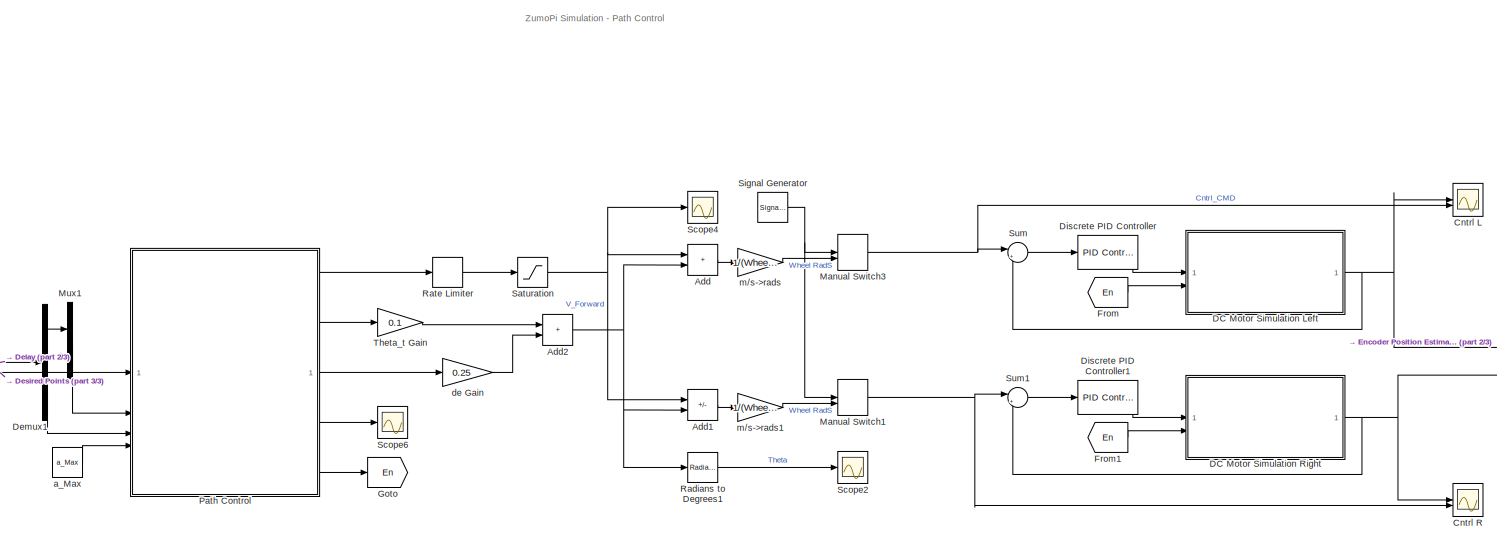
[diagram: root canvas - part 1/3, center side, full height]
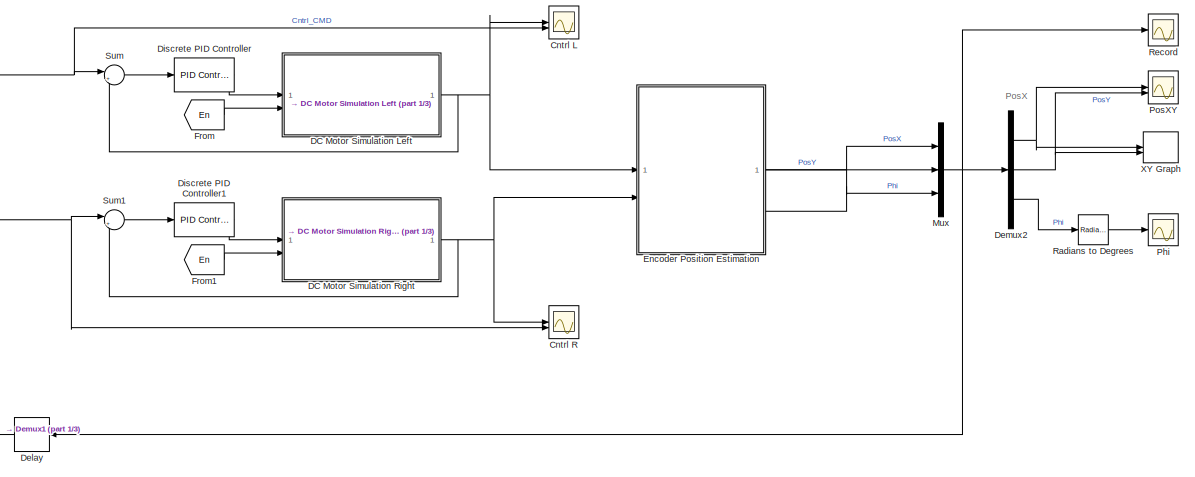
[diagram: root canvas - part 2/3, middle right region]
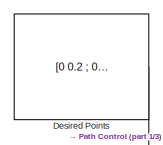
[diagram: root canvas - part 3/3, middle left region]
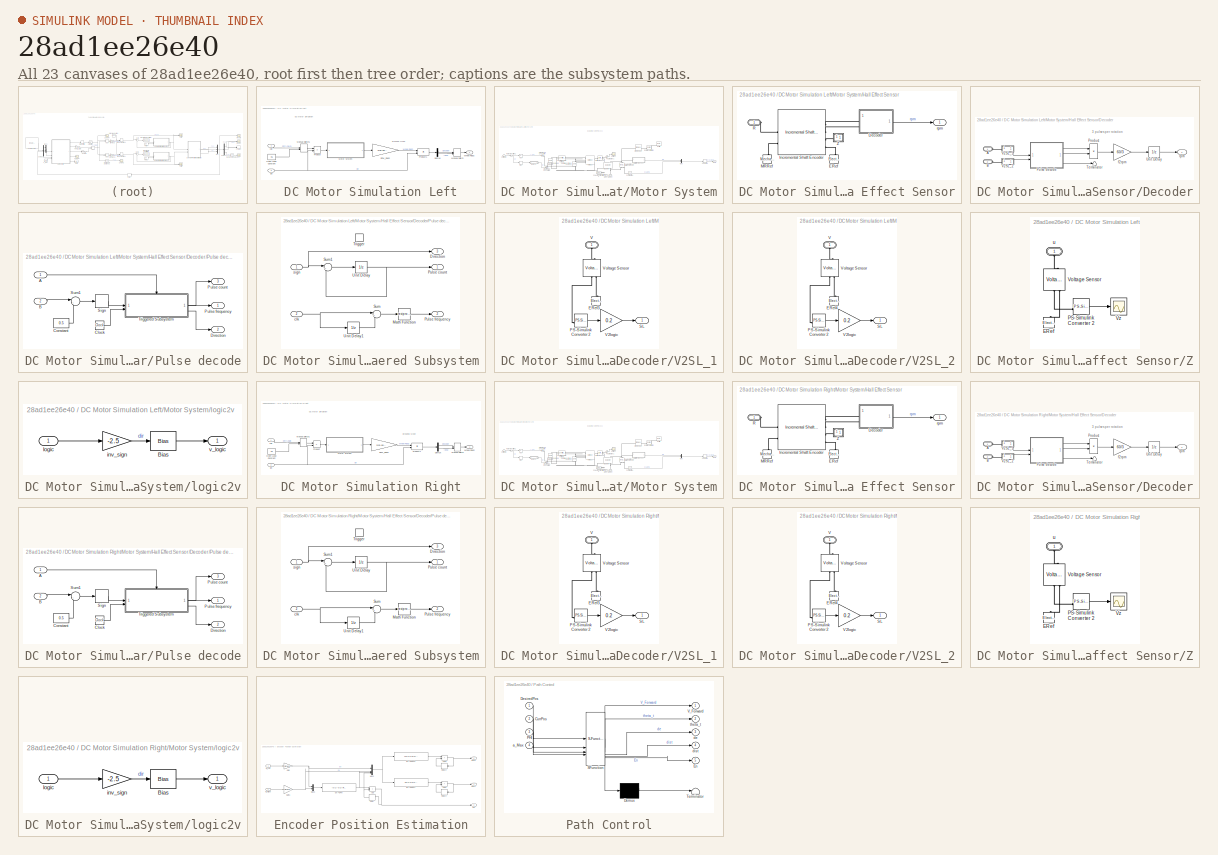
[diagram: thumbnail index - all 23 canvases of the model, root first then tree order]
MODEL slx_28ad1ee26e40
KIND model
CONFIG AbsTol = auto
CONFIG EnableMultiTasking = off
CONFIG FixedStep = auto
CONFIG InitFcn = InitZumo
CONFIG MaxStep = auto
CONFIG MinStep = auto
CONFIG PreLoadFcn = InitZumo
CONFIG RelTol = 1e-3
CONFIG SampleTimeConstraint = Unconstrained
CONFIG SolverName = ode15s
CONFIG StartTime = 0.0
CONFIG StopTime = 60
BLOCK [Sum] Add
  IconShape = rectangular
BLOCK [Sum] Add1
  IconShape = rectangular
  Inputs = +-
BLOCK [Sum] Add2
  IconShape = rectangular
BLOCK [Scope] Cntrl L
  Floating = off
  NumInputPorts = 2
  ScopeSpecificationString = Simulink.scopes.TimeScopeBlockCfg('CurrentConfiguration', extmgr.ConfigurationSet(extmgr.Configuration('Core','General UI',true),extmgr.Configuration('Core','Source UI',true),extmgr.Configuration('Sources','WiredSimulink',true,'DataLoggingVariableName','ScopeData1','DataLoggingSaveFormat','StructureWithTime','DataLoggingDecimation','1','DataLoggingDecimateData',true),extmgr.Configuration('Visuals'...<+1773ch>
BLOCK [Scope] Cntrl R
  Floating = off
  NumInputPorts = 2
  ScopeSpecificationString = Simulink.scopes.TimeScopeBlockCfg('CurrentConfiguration', extmgr.ConfigurationSet(extmgr.Configuration('Core','General UI',true),extmgr.Configuration('Core','Source UI',true),extmgr.Configuration('Sources','WiredSimulink',true,'DataLoggingVariableName','ScopeData2','DataLoggingSaveFormat','StructureWithTime','DataLoggingDecimation','1','DataLoggingDecimateData',true),extmgr.Configuration('Visuals'...<+1765ch>
BLOCK [SubSystem] DC Motor Simulation Left
BLOCK [Demux] DC Motor Simulation Left/Demux
  Outputs = 2
BLOCK [Inport] DC Motor Simulation Left/En
  Port = 2
BLOCK [ManualSwitch] DC Motor Simulation Left/Manual Switch
BLOCK [ManualSwitch] DC Motor Simulation Left/Manual Switch1
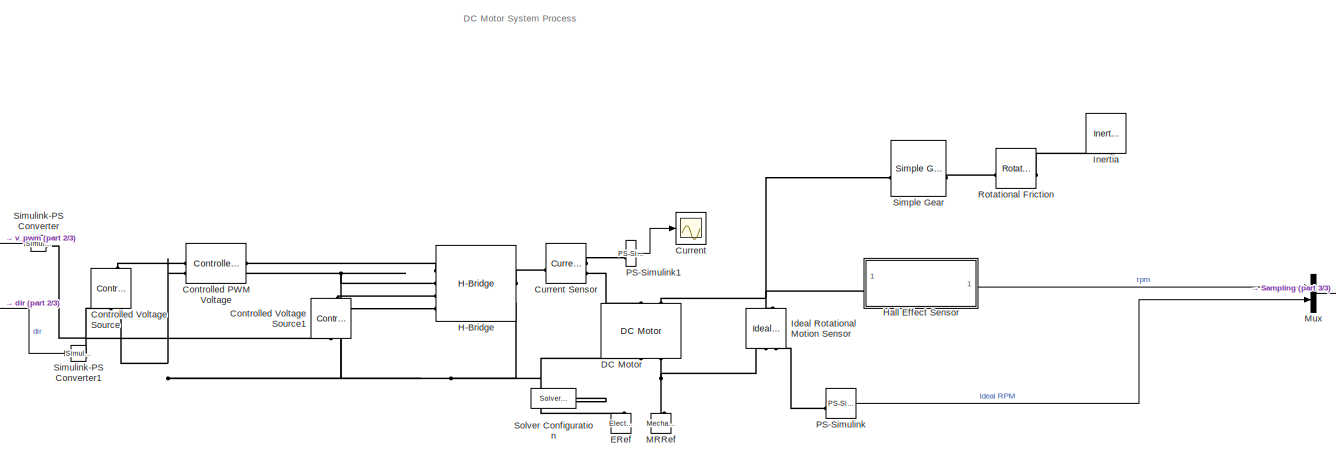
[diagram: DC Motor Simulation Left/Motor System - part 1/3, center side, full height]
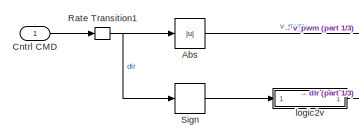
[diagram: DC Motor Simulation Left/Motor System - part 2/3, middle left region]
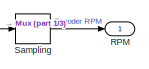
[diagram: DC Motor Simulation Left/Motor System - part 3/3, middle right region]
BLOCK [SubSystem] DC Motor Simulation Left/Motor System
BLOCK [Abs] DC Motor Simulation Left/Motor System/Abs
  SaturateOnIntegerOverflow = off
BLOCK [Inport] DC Motor Simulation Left/Motor System/Cntrl CMD
BLOCK [Reference] DC Motor Simulation Left/Motor System/Controlled PWM Voltage  REF=ee_lib/Integrated Circuits/Controlled PWM
Voltage
  SourceBlock = ee_lib/Integrated Circuits/Controlled PWM\nVoltage
  SourceType = Controlled PWM\nVoltage
BLOCK [Reference] DC Motor Simulation Left/Motor System/Controlled Voltage Source  REF=fl_lib/Electrical/Electrical Sources/Controlled Voltage
Source
  SourceBlock = fl_lib/Electrical/Electrical Sources/Controlled Voltage\nSource
  SourceType = Controlled Voltage\nSource
BLOCK [Reference] DC Motor Simulation Left/Motor System/Controlled Voltage Source1  REF=fl_lib/Electrical/Electrical Sources/Controlled Voltage
Source
  NameLocation = right
  SourceBlock = fl_lib/Electrical/Electrical Sources/Controlled Voltage\nSource
  SourceType = Controlled Voltage\nSource
BLOCK [Scope] DC Motor Simulation Left/Motor System/Current
  Floating = off
  NumInputPorts = 1
  ScopeSpecificationString = Simulink.scopes.TimeScopeBlockCfg('CurrentConfiguration', extmgr.ConfigurationSet(extmgr.Configuration('Core','General UI',true),extmgr.Configuration('Core','Source UI',true),extmgr.Configuration('Sources','WiredSimulink',true,'DataLoggingVariableName','RPM','DataLoggingSaveFormat','StructureWithTime','DataLoggingDecimation','1','DataLoggingDecimateData',true),extmgr.Configuration('Visuals','Time ...<+1669ch>
BLOCK [Reference] DC Motor Simulation Left/Motor System/Current Sensor  REF=fl_lib/Electrical/Electrical Sensors/Current Sensor
  NameLocation = top
  SourceBlock = fl_lib/Electrical/Electrical Sensors/Current Sensor
  SourceType = Current Sensor
BLOCK [Reference] DC Motor Simulation Left/Motor System/DC Motor  REF=ee_lib/Electromechanical/Brushed Motors/DC Motor
  NameLocation = left
  SourceBlock = ee_lib/Electromechanical/Brushed Motors/DC Motor
  SourceType = DC Motor
BLOCK [Reference] DC Motor Simulation Left/Motor System/ERef  REF=fl_lib/Electrical/Electrical Elements/Electrical Reference
  NameLocation = left
  SourceBlock = fl_lib/Electrical/Electrical Elements/Electrical Reference
  SourceType = Electrical Reference
BLOCK [Reference] DC Motor Simulation Left/Motor System/H-Bridge  REF=ee_lib/Semiconductors &
Converters/Converters/H-Bridge
  SourceBlock = ee_lib/Semiconductors &\nConverters/Converters/H-Bridge
  SourceType = H-Bridge
BLOCK [SubSystem] DC Motor Simulation Left/Motor System/Hall Effect Sensor
  NameLocation = top
BLOCK [SubSystem] DC Motor Simulation Left/Motor System/Hall Effect Sensor/Decoder
BLOCK [PMIOPort] DC Motor Simulation Left/Motor System/Hall Effect Sensor/Decoder/A
  Side = Left
BLOCK [PMIOPort] DC Motor Simulation Left/Motor System/Hall Effect Sensor/Decoder/B
  Port = 2
  Side = Left
BLOCK [Product] DC Motor Simulation Left/Motor System/Hall Effect Sensor/Decoder/Product
  RndMeth = Zero
BLOCK [SubSystem] DC Motor Simulation Left/Motor System/Hall Effect Sensor/Decoder/Pulse decode
BLOCK [Inport] DC Motor Simulation Left/Motor System/Hall Effect Sensor/Decoder/Pulse decode/A
BLOCK [Inport] DC Motor Simulation Left/Motor System/Hall Effect Sensor/Decoder/Pulse decode/B
  Port = 2
BLOCK [Clock] DC Motor Simulation Left/Motor System/Hall Effect Sensor/Decoder/Pulse decode/Clock
BLOCK [Constant] DC Motor Simulation Left/Motor System/Hall Effect Sensor/Decoder/Pulse decode/Constant
  Value = 0.5
BLOCK [Outport] DC Motor Simulation Left/Motor System/Hall Effect Sensor/Decoder/Pulse decode/Direction
  Port = 2
  VectorParamsAs1DForOutWhenUnconnected = off
BLOCK [Outport] DC Motor Simulation Left/Motor System/Hall Effect Sensor/Decoder/Pulse decode/Pulse count
  Port = 3
  VectorParamsAs1DForOutWhenUnconnected = off
BLOCK [Outport] DC Motor Simulation Left/Motor System/Hall Effect Sensor/Decoder/Pulse decode/Pulse frequency
  VectorParamsAs1DForOutWhenUnconnected = off
BLOCK [Signum] DC Motor Simulation Left/Motor System/Hall Effect Sensor/Decoder/Pulse decode/Sign
BLOCK [Sum] DC Motor Simulation Left/Motor System/Hall Effect Sensor/Decoder/Pulse decode/Sum1
  Inputs = |-+
BLOCK [SubSystem] DC Motor Simulation Left/Motor System/Hall Effect Sensor/Decoder/Pulse decode/Triggered Subsystem
  TreatAsAtomicUnit = on
BLOCK [Outport] DC Motor Simulation Left/Motor System/Hall Effect Sensor/Decoder/Pulse decode/Triggered Subsystem/Direction
  InitialOutput = 0
  Port = 3
  VectorParamsAs1DForOutWhenUnconnected = off
BLOCK [Math] DC Motor Simulation Left/Motor System/Hall Effect Sensor/Decoder/Pulse decode/Triggered Subsystem/Math Function
  Operator = reciprocal
  SignedPower = on
BLOCK [Outport] DC Motor Simulation Left/Motor System/Hall Effect Sensor/Decoder/Pulse decode/Triggered Subsystem/Pulse count
  InitialOutput = 0
  VectorParamsAs1DForOutWhenUnconnected = off
BLOCK [Outport] DC Motor Simulation Left/Motor System/Hall Effect Sensor/Decoder/Pulse decode/Triggered Subsystem/Pulse frequency
  Port = 2
  VectorParamsAs1DForOutWhenUnconnected = off
BLOCK [Sum] DC Motor Simulation Left/Motor System/Hall Effect Sensor/Decoder/Pulse decode/Triggered Subsystem/Sum
  Inputs = |+-
BLOCK [Sum] DC Motor Simulation Left/Motor System/Hall Effect Sensor/Decoder/Pulse decode/Triggered Subsystem/Sum1
  Inputs = |++
BLOCK [TriggerPort] DC Motor Simulation Left/Motor System/Hall Effect Sensor/Decoder/Pulse decode/Triggered Subsystem/Trigger
  StatesWhenEnabling = held
  VariantControl = Variant
BLOCK [UnitDelay] DC Motor Simulation Left/Motor System/Hall Effect Sensor/Decoder/Pulse decode/Triggered Subsystem/Unit Delay
  HasFrameUpgradeWarning = on
  SampleTime = -1
BLOCK [UnitDelay] DC Motor Simulation Left/Motor System/Hall Effect Sensor/Decoder/Pulse decode/Triggered Subsystem/Unit Delay1
  HasFrameUpgradeWarning = on
  InitialCondition = -1e10
  SampleTime = -1
BLOCK [Inport] DC Motor Simulation Left/Motor System/Hall Effect Sensor/Decoder/Pulse decode/Triggered Subsystem/clk
  Port = 2
BLOCK [Inport] DC Motor Simulation Left/Motor System/Hall Effect Sensor/Decoder/Pulse decode/Triggered Subsystem/sign
BLOCK [Terminator] DC Motor Simulation Left/Motor System/Hall Effect Sensor/Decoder/Terminator
BLOCK [UnitDelay] DC Motor Simulation Left/Motor System/Hall Effect Sensor/Decoder/Unit Delay
  HasFrameUpgradeWarning = on
  SampleTime = sampleTime
BLOCK [SubSystem] DC Motor Simulation Left/Motor System/Hall Effect Sensor/Decoder/V2SL_1
BLOCK [Reference] DC Motor Simulation Left/Motor System/Hall Effect Sensor/Decoder/V2SL_1/ERef3  REF=fl_lib/Electrical/Electrical Elements/Electrical Reference
  NameLocation = right
  SourceBlock = fl_lib/Electrical/Electrical Elements/Electrical Reference
  SourceType = Electrical Reference
BLOCK [Reference] DC Motor Simulation Left/Motor System/Hall Effect Sensor/Decoder/V2SL_1/PS-Simulink Converter 2  REF=nesl_utility/PS-Simulink
Converter
  SourceBlock = nesl_utility/PS-Simulink\nConverter
  SourceType = PS-Simulink\nConverter
BLOCK [Outport] DC Motor Simulation Left/Motor System/Hall Effect Sensor/Decoder/V2SL_1/SL
  VectorParamsAs1DForOutWhenUnconnected = off
BLOCK [PMIOPort] DC Motor Simulation Left/Motor System/Hall Effect Sensor/Decoder/V2SL_1/V
  NameLocation = right
  Side = Left
BLOCK [Gain] DC Motor Simulation Left/Motor System/Hall Effect Sensor/Decoder/V2SL_1/V2logic
  Gain = 0.2
BLOCK [Reference] DC Motor Simulation Left/Motor System/Hall Effect Sensor/Decoder/V2SL_1/Voltage Sensor  REF=fl_lib/Electrical/Electrical Sensors/Voltage Sensor
  NameLocation = right
  SourceBlock = fl_lib/Electrical/Electrical Sensors/Voltage Sensor
  SourceType = Voltage Sensor
BLOCK [SubSystem] DC Motor Simulation Left/Motor System/Hall Effect Sensor/Decoder/V2SL_2
BLOCK [Reference] DC Motor Simulation Left/Motor System/Hall Effect Sensor/Decoder/V2SL_2/ERef4  REF=fl_lib/Electrical/Electrical Elements/Electrical Reference
  NameLocation = right
  SourceBlock = fl_lib/Electrical/Electrical Elements/Electrical Reference
  SourceType = Electrical Reference
BLOCK [Reference] DC Motor Simulation Left/Motor System/Hall Effect Sensor/Decoder/V2SL_2/PS-Simulink Converter 2  REF=nesl_utility/PS-Simulink
Converter
  SourceBlock = nesl_utility/PS-Simulink\nConverter
  SourceType = PS-Simulink\nConverter
BLOCK [Outport] DC Motor Simulation Left/Motor System/Hall Effect Sensor/Decoder/V2SL_2/SL
  VectorParamsAs1DForOutWhenUnconnected = off
BLOCK [PMIOPort] DC Motor Simulation Left/Motor System/Hall Effect Sensor/Decoder/V2SL_2/V
  NameLocation = right
  Side = Left
BLOCK [Gain] DC Motor Simulation Left/Motor System/Hall Effect Sensor/Decoder/V2SL_2/V2logic
  Gain = 0.2
BLOCK [Reference] DC Motor Simulation Left/Motor System/Hall Effect Sensor/Decoder/V2SL_2/Voltage Sensor  REF=fl_lib/Electrical/Electrical Sensors/Voltage Sensor
  NameLocation = right
  SourceBlock = fl_lib/Electrical/Electrical Sensors/Voltage Sensor
  SourceType = Voltage Sensor
BLOCK [Gain] DC Motor Simulation Left/Motor System/Hall Effect Sensor/Decoder/f2rpm
  Gain = 60/3
BLOCK [Outport] DC Motor Simulation Left/Motor System/Hall Effect Sensor/Decoder/rpm
  VectorParamsAs1DForOutWhenUnconnected = off
BLOCK [Reference] DC Motor Simulation Left/Motor System/Hall Effect Sensor/ERef  REF=fl_lib/Electrical/Electrical Elements/Electrical Reference
  NameLocation = right
  SourceBlock = fl_lib/Electrical/Electrical Elements/Electrical Reference
  SourceType = Electrical Reference
BLOCK [Reference] DC Motor Simulation Left/Motor System/Hall Effect Sensor/Incremental Shaft Encoder  REF=ee_lib/Sensors &
Transducers/Incremental Shaft
Encoder
  SourceBlock = ee_lib/Sensors &\nTransducers/Incremental Shaft\nEncoder
  SourceType = Incremental Shaft\nEncoder
BLOCK [Reference] DC Motor Simulation Left/Motor System/Hall Effect Sensor/MRRef  REF=fl_lib/Mechanical/Rotational Elements/Mechanical
Rotational Reference
  NameLocation = left
  SourceBlock = fl_lib/Mechanical/Rotational Elements/Mechanical\nRotational Reference
  SourceType = Mechanical\nRotational Reference
BLOCK [PMIOPort] DC Motor Simulation Left/Motor System/Hall Effect Sensor/R
  Side = Left
BLOCK [SubSystem] DC Motor Simulation Left/Motor System/Hall Effect Sensor/Z
BLOCK [Reference] DC Motor Simulation Left/Motor System/Hall Effect Sensor/Z/ERef  REF=fl_lib/Electrical/Electrical Elements/Electrical Reference
  NameLocation = right
  SourceBlock = fl_lib/Electrical/Electrical Elements/Electrical Reference
  SourceType = Electrical Reference
BLOCK [Reference] DC Motor Simulation Left/Motor System/Hall Effect Sensor/Z/PS-Simulink Converter 2  REF=nesl_utility/PS-Simulink
Converter
  SourceBlock = nesl_utility/PS-Simulink\nConverter
  SourceType = PS-Simulink\nConverter
BLOCK [Reference] DC Motor Simulation Left/Motor System/Hall Effect Sensor/Z/Voltage Sensor  REF=fl_lib/Electrical/Electrical Sensors/Voltage Sensor
  NameLocation = right
  SourceBlock = fl_lib/Electrical/Electrical Sensors/Voltage Sensor
  SourceType = Voltage Sensor
BLOCK [Scope] DC Motor Simulation Left/Motor System/Hall Effect Sensor/Z/Vz
  Floating = off
  NumInputPorts = 1
  ScopeSpecificationString = Simulink.scopes.TimeScopeBlockCfg('CurrentConfiguration', extmgr.ConfigurationSet(extmgr.Configuration('Core','General UI',true),extmgr.Configuration('Core','Source UI',true),extmgr.Configuration('Sources','WiredSimulink',true,'DataLoggingVariableName','ScopeData6','DataLoggingSaveFormat','StructureWithTime','DataLoggingDecimation','1'),extmgr.Configuration('Visuals','Time Domain',true,'Serialized...<+1618ch>
BLOCK [PMIOPort] DC Motor Simulation Left/Motor System/Hall Effect Sensor/Z/u
  NameLocation = right
  Side = Left
BLOCK [Outport] DC Motor Simulation Left/Motor System/Hall Effect Sensor/rpm
  VectorParamsAs1DForOutWhenUnconnected = off
BLOCK [Reference] DC Motor Simulation Left/Motor System/Ideal Rotational Motion Sensor  REF=fl_lib/Mechanical/Mechanical Sensors/Ideal Rotational
Motion Sensor
  NameLocation = right
  SourceBlock = fl_lib/Mechanical/Mechanical Sensors/Ideal Rotational\nMotion Sensor
  SourceType = Ideal Rotational\nMotion Sensor
BLOCK [Reference] DC Motor Simulation Left/Motor System/Inertia  REF=fl_lib/Mechanical/Rotational Elements/Inertia
  NameLocation = right
  SourceBlock = fl_lib/Mechanical/Rotational Elements/Inertia
  SourceType = Inertia
BLOCK [Reference] DC Motor Simulation Left/Motor System/MRRef  REF=fl_lib/Mechanical/Rotational Elements/Mechanical
Rotational Reference
  NameLocation = right
  SourceBlock = fl_lib/Mechanical/Rotational Elements/Mechanical\nRotational Reference
  SourceType = Mechanical\nRotational Reference
BLOCK [Mux] DC Motor Simulation Left/Motor System/Mux
  DisplayOption = bar
  Inputs = 2
BLOCK [Reference] DC Motor Simulation Left/Motor System/PS-Simulink  REF=nesl_utility/PS-Simulink
Converter
  SourceBlock = nesl_utility/PS-Simulink\nConverter
  SourceType = PS-Simulink\nConverter
BLOCK [Reference] DC Motor Simulation Left/Motor System/PS-Simulink1  REF=nesl_utility/PS-Simulink
Converter
  SourceBlock = nesl_utility/PS-Simulink\nConverter
  SourceType = PS-Simulink\nConverter
BLOCK [Outport] DC Motor Simulation Left/Motor System/RPM
BLOCK [RateTransition] DC Motor Simulation Left/Motor System/Rate Transition1
BLOCK [Reference] DC Motor Simulation Left/Motor System/Rotational Friction  REF=fl_lib/Mechanical/Rotational Elements/Rotational Friction
  SourceBlock = fl_lib/Mechanical/Rotational Elements/Rotational Friction
  SourceType = Rotational Friction
BLOCK [ZeroOrderHold] DC Motor Simulation Left/Motor System/Sampling
  SampleTime = sampleTime
BLOCK [Signum] DC Motor Simulation Left/Motor System/Sign
BLOCK [Reference] DC Motor Simulation Left/Motor System/Simple Gear  REF=sdl_lib/Gears/Simple Gear
  SourceBlock = sdl_lib/Gears/Simple Gear
  SourceType = Simple Gear
BLOCK [Reference] DC Motor Simulation Left/Motor System/Simulink-PS Converter  REF=nesl_utility/Simulink-PS
Converter
  SourceBlock = nesl_utility/Simulink-PS\nConverter
  SourceType = Simulink-PS\nConverter
BLOCK [Reference] DC Motor Simulation Left/Motor System/Simulink-PS Converter1  REF=nesl_utility/Simulink-PS
Converter
  SourceBlock = nesl_utility/Simulink-PS\nConverter
  SourceType = Simulink-PS\nConverter
BLOCK [Reference] DC Motor Simulation Left/Motor System/Solver Configuration  REF=nesl_utility/Solver
Configuration
  SourceBlock = nesl_utility/Solver\nConfiguration
  SourceType = Solver\nConfiguration
BLOCK [SubSystem] DC Motor Simulation Left/Motor System/logic2v
BLOCK [Bias] DC Motor Simulation Left/Motor System/logic2v/Bias
  Bias = 2.5
  SaturateOnIntegerOverflow = off
BLOCK [Gain] DC Motor Simulation Left/Motor System/logic2v/inv_sign
  Gain = -2.5
BLOCK [Inport] DC Motor Simulation Left/Motor System/logic2v/logic
BLOCK [Outport] DC Motor Simulation Left/Motor System/logic2v/v_logic
BLOCK [Constant] DC Motor Simulation Left/Open Loop Constant
  SampleTime = sampleTime
  Value = 0.5
BLOCK [Product] DC Motor Simulation Left/Product
BLOCK [Product] DC Motor Simulation Left/Product1
BLOCK [Gain] DC Motor Simulation Left/RPM_RadS
  Gain = 2*pi/60/GearRatio
BLOCK [Outport] DC Motor Simulation Left/Wheel RadS
BLOCK [Inport] DC Motor Simulation Left/cEr
BLOCK [SubSystem] DC Motor Simulation Right
BLOCK [Demux] DC Motor Simulation Right/Demux
  Outputs = 2
BLOCK [Inport] DC Motor Simulation Right/En
  Port = 2
BLOCK [ManualSwitch] DC Motor Simulation Right/Manual Switch
BLOCK [ManualSwitch] DC Motor Simulation Right/Manual Switch1
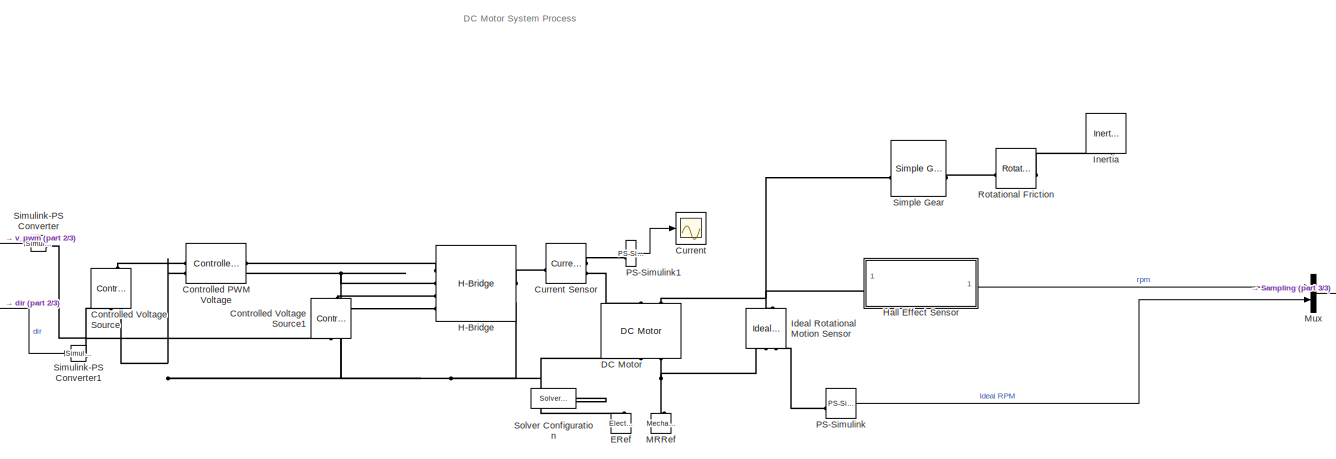
[diagram: DC Motor Simulation Right/Motor System - part 1/3, center side, full height]
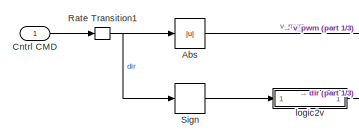
[diagram: DC Motor Simulation Right/Motor System - part 2/3, middle left region]
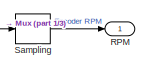
[diagram: DC Motor Simulation Right/Motor System - part 3/3, middle right region]
BLOCK [SubSystem] DC Motor Simulation Right/Motor System
BLOCK [Abs] DC Motor Simulation Right/Motor System/Abs
  SaturateOnIntegerOverflow = off
BLOCK [Inport] DC Motor Simulation Right/Motor System/Cntrl CMD
BLOCK [Reference] DC Motor Simulation Right/Motor System/Controlled PWM Voltage  REF=ee_lib/Integrated Circuits/Controlled PWM
Voltage
  SourceBlock = ee_lib/Integrated Circuits/Controlled PWM\nVoltage
  SourceType = Controlled PWM\nVoltage
BLOCK [Reference] DC Motor Simulation Right/Motor System/Controlled Voltage Source  REF=fl_lib/Electrical/Electrical Sources/Controlled Voltage
Source
  SourceBlock = fl_lib/Electrical/Electrical Sources/Controlled Voltage\nSource
  SourceType = Controlled Voltage\nSource
BLOCK [Reference] DC Motor Simulation Right/Motor System/Controlled Voltage Source1  REF=fl_lib/Electrical/Electrical Sources/Controlled Voltage
Source
  NameLocation = right
  SourceBlock = fl_lib/Electrical/Electrical Sources/Controlled Voltage\nSource
  SourceType = Controlled Voltage\nSource
BLOCK [Scope] DC Motor Simulation Right/Motor System/Current
  Floating = off
  NumInputPorts = 1
  ScopeSpecificationString = Simulink.scopes.TimeScopeBlockCfg('CurrentConfiguration', extmgr.ConfigurationSet(extmgr.Configuration('Core','General UI',true),extmgr.Configuration('Core','Source UI',true),extmgr.Configuration('Sources','WiredSimulink',true,'DataLoggingVariableName','RPM','DataLoggingSaveFormat','StructureWithTime','DataLoggingDecimation','1','DataLoggingDecimateData',true),extmgr.Configuration('Visuals','Time ...<+1669ch>
BLOCK [Reference] DC Motor Simulation Right/Motor System/Current Sensor  REF=fl_lib/Electrical/Electrical Sensors/Current Sensor
  NameLocation = top
  SourceBlock = fl_lib/Electrical/Electrical Sensors/Current Sensor
  SourceType = Current Sensor
BLOCK [Reference] DC Motor Simulation Right/Motor System/DC Motor  REF=ee_lib/Electromechanical/Brushed Motors/DC Motor
  NameLocation = left
  SourceBlock = ee_lib/Electromechanical/Brushed Motors/DC Motor
  SourceType = DC Motor
BLOCK [Reference] DC Motor Simulation Right/Motor System/ERef  REF=fl_lib/Electrical/Electrical Elements/Electrical Reference
  NameLocation = left
  SourceBlock = fl_lib/Electrical/Electrical Elements/Electrical Reference
  SourceType = Electrical Reference
BLOCK [Reference] DC Motor Simulation Right/Motor System/H-Bridge  REF=ee_lib/Semiconductors &
Converters/Converters/H-Bridge
  SourceBlock = ee_lib/Semiconductors &\nConverters/Converters/H-Bridge
  SourceType = H-Bridge
BLOCK [SubSystem] DC Motor Simulation Right/Motor System/Hall Effect Sensor
  NameLocation = top
BLOCK [SubSystem] DC Motor Simulation Right/Motor System/Hall Effect Sensor/Decoder
BLOCK [PMIOPort] DC Motor Simulation Right/Motor System/Hall Effect Sensor/Decoder/A
  Side = Left
BLOCK [PMIOPort] DC Motor Simulation Right/Motor System/Hall Effect Sensor/Decoder/B
  Port = 2
  Side = Left
BLOCK [Product] DC Motor Simulation Right/Motor System/Hall Effect Sensor/Decoder/Product
  RndMeth = Zero
BLOCK [SubSystem] DC Motor Simulation Right/Motor System/Hall Effect Sensor/Decoder/Pulse decode
BLOCK [Inport] DC Motor Simulation Right/Motor System/Hall Effect Sensor/Decoder/Pulse decode/A
BLOCK [Inport] DC Motor Simulation Right/Motor System/Hall Effect Sensor/Decoder/Pulse decode/B
  Port = 2
BLOCK [Clock] DC Motor Simulation Right/Motor System/Hall Effect Sensor/Decoder/Pulse decode/Clock
BLOCK [Constant] DC Motor Simulation Right/Motor System/Hall Effect Sensor/Decoder/Pulse decode/Constant
  Value = 0.5
BLOCK [Outport] DC Motor Simulation Right/Motor System/Hall Effect Sensor/Decoder/Pulse decode/Direction
  Port = 2
  VectorParamsAs1DForOutWhenUnconnected = off
BLOCK [Outport] DC Motor Simulation Right/Motor System/Hall Effect Sensor/Decoder/Pulse decode/Pulse count
  Port = 3
  VectorParamsAs1DForOutWhenUnconnected = off
BLOCK [Outport] DC Motor Simulation Right/Motor System/Hall Effect Sensor/Decoder/Pulse decode/Pulse frequency
  VectorParamsAs1DForOutWhenUnconnected = off
BLOCK [Signum] DC Motor Simulation Right/Motor System/Hall Effect Sensor/Decoder/Pulse decode/Sign
BLOCK [Sum] DC Motor Simulation Right/Motor System/Hall Effect Sensor/Decoder/Pulse decode/Sum1
  Inputs = |-+
BLOCK [SubSystem] DC Motor Simulation Right/Motor System/Hall Effect Sensor/Decoder/Pulse decode/Triggered Subsystem
  TreatAsAtomicUnit = on
BLOCK [Outport] DC Motor Simulation Right/Motor System/Hall Effect Sensor/Decoder/Pulse decode/Triggered Subsystem/Direction
  InitialOutput = 0
  Port = 3
  VectorParamsAs1DForOutWhenUnconnected = off
BLOCK [Math] DC Motor Simulation Right/Motor System/Hall Effect Sensor/Decoder/Pulse decode/Triggered Subsystem/Math Function
  Operator = reciprocal
  SignedPower = on
BLOCK [Outport] DC Motor Simulation Right/Motor System/Hall Effect Sensor/Decoder/Pulse decode/Triggered Subsystem/Pulse count
  InitialOutput = 0
  VectorParamsAs1DForOutWhenUnconnected = off
BLOCK [Outport] DC Motor Simulation Right/Motor System/Hall Effect Sensor/Decoder/Pulse decode/Triggered Subsystem/Pulse frequency
  Port = 2
  VectorParamsAs1DForOutWhenUnconnected = off
BLOCK [Sum] DC Motor Simulation Right/Motor System/Hall Effect Sensor/Decoder/Pulse decode/Triggered Subsystem/Sum
  Inputs = |+-
BLOCK [Sum] DC Motor Simulation Right/Motor System/Hall Effect Sensor/Decoder/Pulse decode/Triggered Subsystem/Sum1
  Inputs = |++
BLOCK [TriggerPort] DC Motor Simulation Right/Motor System/Hall Effect Sensor/Decoder/Pulse decode/Triggered Subsystem/Trigger
  StatesWhenEnabling = held
  VariantControl = Variant
BLOCK [UnitDelay] DC Motor Simulation Right/Motor System/Hall Effect Sensor/Decoder/Pulse decode/Triggered Subsystem/Unit Delay
  HasFrameUpgradeWarning = on
  SampleTime = -1
BLOCK [UnitDelay] DC Motor Simulation Right/Motor System/Hall Effect Sensor/Decoder/Pulse decode/Triggered Subsystem/Unit Delay1
  HasFrameUpgradeWarning = on
  InitialCondition = -1e10
  SampleTime = -1
BLOCK [Inport] DC Motor Simulation Right/Motor System/Hall Effect Sensor/Decoder/Pulse decode/Triggered Subsystem/clk
  Port = 2
BLOCK [Inport] DC Motor Simulation Right/Motor System/Hall Effect Sensor/Decoder/Pulse decode/Triggered Subsystem/sign
BLOCK [Terminator] DC Motor Simulation Right/Motor System/Hall Effect Sensor/Decoder/Terminator
BLOCK [UnitDelay] DC Motor Simulation Right/Motor System/Hall Effect Sensor/Decoder/Unit Delay
  HasFrameUpgradeWarning = on
  SampleTime = sampleTime
BLOCK [SubSystem] DC Motor Simulation Right/Motor System/Hall Effect Sensor/Decoder/V2SL_1
BLOCK [Reference] DC Motor Simulation Right/Motor System/Hall Effect Sensor/Decoder/V2SL_1/ERef3  REF=fl_lib/Electrical/Electrical Elements/Electrical Reference
  NameLocation = right
  SourceBlock = fl_lib/Electrical/Electrical Elements/Electrical Reference
  SourceType = Electrical Reference
BLOCK [Reference] DC Motor Simulation Right/Motor System/Hall Effect Sensor/Decoder/V2SL_1/PS-Simulink Converter 2  REF=nesl_utility/PS-Simulink
Converter
  SourceBlock = nesl_utility/PS-Simulink\nConverter
  SourceType = PS-Simulink\nConverter
BLOCK [Outport] DC Motor Simulation Right/Motor System/Hall Effect Sensor/Decoder/V2SL_1/SL
  VectorParamsAs1DForOutWhenUnconnected = off
BLOCK [PMIOPort] DC Motor Simulation Right/Motor System/Hall Effect Sensor/Decoder/V2SL_1/V
  NameLocation = right
  Side = Left
BLOCK [Gain] DC Motor Simulation Right/Motor System/Hall Effect Sensor/Decoder/V2SL_1/V2logic
  Gain = 0.2
BLOCK [Reference] DC Motor Simulation Right/Motor System/Hall Effect Sensor/Decoder/V2SL_1/Voltage Sensor  REF=fl_lib/Electrical/Electrical Sensors/Voltage Sensor
  NameLocation = right
  SourceBlock = fl_lib/Electrical/Electrical Sensors/Voltage Sensor
  SourceType = Voltage Sensor
BLOCK [SubSystem] DC Motor Simulation Right/Motor System/Hall Effect Sensor/Decoder/V2SL_2
BLOCK [Reference] DC Motor Simulation Right/Motor System/Hall Effect Sensor/Decoder/V2SL_2/ERef4  REF=fl_lib/Electrical/Electrical Elements/Electrical Reference
  NameLocation = right
  SourceBlock = fl_lib/Electrical/Electrical Elements/Electrical Reference
  SourceType = Electrical Reference
BLOCK [Reference] DC Motor Simulation Right/Motor System/Hall Effect Sensor/Decoder/V2SL_2/PS-Simulink Converter 2  REF=nesl_utility/PS-Simulink
Converter
  SourceBlock = nesl_utility/PS-Simulink\nConverter
  SourceType = PS-Simulink\nConverter
BLOCK [Outport] DC Motor Simulation Right/Motor System/Hall Effect Sensor/Decoder/V2SL_2/SL
  VectorParamsAs1DForOutWhenUnconnected = off
BLOCK [PMIOPort] DC Motor Simulation Right/Motor System/Hall Effect Sensor/Decoder/V2SL_2/V
  NameLocation = right
  Side = Left
BLOCK [Gain] DC Motor Simulation Right/Motor System/Hall Effect Sensor/Decoder/V2SL_2/V2logic
  Gain = 0.2
BLOCK [Reference] DC Motor Simulation Right/Motor System/Hall Effect Sensor/Decoder/V2SL_2/Voltage Sensor  REF=fl_lib/Electrical/Electrical Sensors/Voltage Sensor
  NameLocation = right
  SourceBlock = fl_lib/Electrical/Electrical Sensors/Voltage Sensor
  SourceType = Voltage Sensor
BLOCK [Gain] DC Motor Simulation Right/Motor System/Hall Effect Sensor/Decoder/f2rpm
  Gain = 60/3
BLOCK [Outport] DC Motor Simulation Right/Motor System/Hall Effect Sensor/Decoder/rpm
  VectorParamsAs1DForOutWhenUnconnected = off
BLOCK [Reference] DC Motor Simulation Right/Motor System/Hall Effect Sensor/ERef  REF=fl_lib/Electrical/Electrical Elements/Electrical Reference
  NameLocation = right
  SourceBlock = fl_lib/Electrical/Electrical Elements/Electrical Reference
  SourceType = Electrical Reference
BLOCK [Reference] DC Motor Simulation Right/Motor System/Hall Effect Sensor/Incremental Shaft Encoder  REF=ee_lib/Sensors &
Transducers/Incremental Shaft
Encoder
  SourceBlock = ee_lib/Sensors &\nTransducers/Incremental Shaft\nEncoder
  SourceType = Incremental Shaft\nEncoder
BLOCK [Reference] DC Motor Simulation Right/Motor System/Hall Effect Sensor/MRRef  REF=fl_lib/Mechanical/Rotational Elements/Mechanical
Rotational Reference
  NameLocation = left
  SourceBlock = fl_lib/Mechanical/Rotational Elements/Mechanical\nRotational Reference
  SourceType = Mechanical\nRotational Reference
BLOCK [PMIOPort] DC Motor Simulation Right/Motor System/Hall Effect Sensor/R
  Side = Left
BLOCK [SubSystem] DC Motor Simulation Right/Motor System/Hall Effect Sensor/Z
BLOCK [Reference] DC Motor Simulation Right/Motor System/Hall Effect Sensor/Z/ERef  REF=fl_lib/Electrical/Electrical Elements/Electrical Reference
  NameLocation = right
  SourceBlock = fl_lib/Electrical/Electrical Elements/Electrical Reference
  SourceType = Electrical Reference
BLOCK [Reference] DC Motor Simulation Right/Motor System/Hall Effect Sensor/Z/PS-Simulink Converter 2  REF=nesl_utility/PS-Simulink
Converter
  SourceBlock = nesl_utility/PS-Simulink\nConverter
  SourceType = PS-Simulink\nConverter
BLOCK [Reference] DC Motor Simulation Right/Motor System/Hall Effect Sensor/Z/Voltage Sensor  REF=fl_lib/Electrical/Electrical Sensors/Voltage Sensor
  NameLocation = right
  SourceBlock = fl_lib/Electrical/Electrical Sensors/Voltage Sensor
  SourceType = Voltage Sensor
BLOCK [Scope] DC Motor Simulation Right/Motor System/Hall Effect Sensor/Z/Vz
  Floating = off
  NumInputPorts = 1
  ScopeSpecificationString = Simulink.scopes.TimeScopeBlockCfg('CurrentConfiguration', extmgr.ConfigurationSet(extmgr.Configuration('Core','General UI',true),extmgr.Configuration('Core','Source UI',true),extmgr.Configuration('Sources','WiredSimulink',true,'DataLoggingVariableName','ScopeData6','DataLoggingSaveFormat','StructureWithTime','DataLoggingDecimation','1'),extmgr.Configuration('Visuals','Time Domain',true,'Serialized...<+1618ch>
BLOCK [PMIOPort] DC Motor Simulation Right/Motor System/Hall Effect Sensor/Z/u
  NameLocation = right
  Side = Left
BLOCK [Outport] DC Motor Simulation Right/Motor System/Hall Effect Sensor/rpm
  VectorParamsAs1DForOutWhenUnconnected = off
BLOCK [Reference] DC Motor Simulation Right/Motor System/Ideal Rotational Motion Sensor  REF=fl_lib/Mechanical/Mechanical Sensors/Ideal Rotational
Motion Sensor
  NameLocation = right
  SourceBlock = fl_lib/Mechanical/Mechanical Sensors/Ideal Rotational\nMotion Sensor
  SourceType = Ideal Rotational\nMotion Sensor
BLOCK [Reference] DC Motor Simulation Right/Motor System/Inertia  REF=fl_lib/Mechanical/Rotational Elements/Inertia
  NameLocation = right
  SourceBlock = fl_lib/Mechanical/Rotational Elements/Inertia
  SourceType = Inertia
BLOCK [Reference] DC Motor Simulation Right/Motor System/MRRef  REF=fl_lib/Mechanical/Rotational Elements/Mechanical
Rotational Reference
  NameLocation = right
  SourceBlock = fl_lib/Mechanical/Rotational Elements/Mechanical\nRotational Reference
  SourceType = Mechanical\nRotational Reference
BLOCK [Mux] DC Motor Simulation Right/Motor System/Mux
  DisplayOption = bar
  Inputs = 2
BLOCK [Reference] DC Motor Simulation Right/Motor System/PS-Simulink  REF=nesl_utility/PS-Simulink
Converter
  SourceBlock = nesl_utility/PS-Simulink\nConverter
  SourceType = PS-Simulink\nConverter
BLOCK [Reference] DC Motor Simulation Right/Motor System/PS-Simulink1  REF=nesl_utility/PS-Simulink
Converter
  SourceBlock = nesl_utility/PS-Simulink\nConverter
  SourceType = PS-Simulink\nConverter
BLOCK [Outport] DC Motor Simulation Right/Motor System/RPM
BLOCK [RateTransition] DC Motor Simulation Right/Motor System/Rate Transition1
BLOCK [Reference] DC Motor Simulation Right/Motor System/Rotational Friction  REF=fl_lib/Mechanical/Rotational Elements/Rotational Friction
  SourceBlock = fl_lib/Mechanical/Rotational Elements/Rotational Friction
  SourceType = Rotational Friction
BLOCK [ZeroOrderHold] DC Motor Simulation Right/Motor System/Sampling
  SampleTime = sampleTime
BLOCK [Signum] DC Motor Simulation Right/Motor System/Sign
BLOCK [Reference] DC Motor Simulation Right/Motor System/Simple Gear  REF=sdl_lib/Gears/Simple Gear
  SourceBlock = sdl_lib/Gears/Simple Gear
  SourceType = Simple Gear
BLOCK [Reference] DC Motor Simulation Right/Motor System/Simulink-PS Converter  REF=nesl_utility/Simulink-PS
Converter
  SourceBlock = nesl_utility/Simulink-PS\nConverter
  SourceType = Simulink-PS\nConverter
BLOCK [Reference] DC Motor Simulation Right/Motor System/Simulink-PS Converter1  REF=nesl_utility/Simulink-PS
Converter
  SourceBlock = nesl_utility/Simulink-PS\nConverter
  SourceType = Simulink-PS\nConverter
BLOCK [Reference] DC Motor Simulation Right/Motor System/Solver Configuration  REF=nesl_utility/Solver
Configuration
  SourceBlock = nesl_utility/Solver\nConfiguration
  SourceType = Solver\nConfiguration
BLOCK [SubSystem] DC Motor Simulation Right/Motor System/logic2v
BLOCK [Bias] DC Motor Simulation Right/Motor System/logic2v/Bias
  Bias = 2.5
  SaturateOnIntegerOverflow = off
BLOCK [Gain] DC Motor Simulation Right/Motor System/logic2v/inv_sign
  Gain = -2.5
BLOCK [Inport] DC Motor Simulation Right/Motor System/logic2v/logic
BLOCK [Outport] DC Motor Simulation Right/Motor System/logic2v/v_logic
BLOCK [Constant] DC Motor Simulation Right/Open Loop Constant
  SampleTime = sampleTime
  Value = 0.5
BLOCK [Product] DC Motor Simulation Right/Product
BLOCK [Product] DC Motor Simulation Right/Product1
BLOCK [Gain] DC Motor Simulation Right/RPM_RadS
  Gain = 2*pi/60/GearRatio
BLOCK [Outport] DC Motor Simulation Right/Wheel RadS
BLOCK [Inport] DC Motor Simulation Right/cEr
BLOCK [Delay] Delay
  DelayLength = 1
  InitialCondition = 0
  InputPortMap = u0
  SampleTime = sampleTime
BLOCK [Demux] Demux1
  Outputs = 3
BLOCK [Demux] Demux2
  Outputs = 3
BLOCK [Constant] Desired Points
  Value = [0 0.2 ;  0 0.4 ; 0 0.6; 0 0.8; 0 1]
BLOCK [Reference] Discrete PID Controller  REF=slpidlib/PID Controller
  SourceBlock = slpidlib/PID Controller
  SourceType = PID 1dof
BLOCK [Reference] Discrete PID Controller1  REF=slpidlib/PID Controller
  SourceBlock = slpidlib/PID Controller
  SourceType = PID 1dof
BLOCK [SubSystem] Encoder Position Estimation
BLOCK [Sum] Encoder Position Estimation/Add
  IconShape = rectangular
BLOCK [Sum] Encoder Position Estimation/Add1
  IconShape = rectangular
BLOCK [Sum] Encoder Position Estimation/Add2
  IconShape = rectangular
BLOCK [Delay] Encoder Position Estimation/Delay
  DelayLength = 1
  InitialCondition = Phi_Init
  InputPortMap = u0
BLOCK [Delay] Encoder Position Estimation/Delay1
  DelayLength = 1
  InitialCondition = Y_Pos_Init
  InputPortMap = u0
BLOCK [Delay] Encoder Position Estimation/Delay2
  DelayLength = 1
  InitialCondition = X_Pos_Init
  InputPortMap = u0
BLOCK [Gain] Encoder Position Estimation/Gain
  Gain = 2*pi*WheelRadius*sampleTime
BLOCK [Gain] Encoder Position Estimation/Gain1
  Gain = 2*pi*WheelRadius*sampleTime
BLOCK [Mux] Encoder Position Estimation/Mux2
  DisplayOption = bar
BLOCK [Mux] Encoder Position Estimation/Mux3
  DisplayOption = bar
  Inputs = 2
BLOCK [Outport] Encoder Position Estimation/Phi
  Port = 3
BLOCK [Outport] Encoder Position Estimation/PosX
BLOCK [Outport] Encoder Position Estimation/PosY
  Port = 2
BLOCK [Inport] Encoder Position Estimation/W_Left
BLOCK [Inport] Encoder Position Estimation/W_Right
  Port = 2
BLOCK [Fcn] Encoder Position Estimation/dX - > dPosX
  Expr = cos(u(3)/2+u(4))*(u(1)+u(2))/2
BLOCK [Fcn] Encoder Position Estimation/dX - > dPosY
  Expr = sin(u(3)/2+u(4))*(u(1)+u(2))/2
BLOCK [Fcn] Encoder Position Estimation/dX -> dPhi
  Expr = (u(1)-u(2))/Robot_L
BLOCK [From] From
  GotoTag = En
BLOCK [From] From1
  GotoTag = En
BLOCK [Goto] Goto
  GotoTag = En
BLOCK [ManualSwitch] Manual Switch1
  CurrentSetting = 0
BLOCK [ManualSwitch] Manual Switch3
  CurrentSetting = 0
BLOCK [Mux] Mux
  DisplayOption = bar
  Inputs = 3
BLOCK [Mux] Mux1
  DisplayOption = bar
  Inputs = 2
BLOCK [SubSystem] Path Control
  ErrorFcn = Stateflow.Translate.translate
  PermitHierarchicalResolution = ExplicitOnly
  SFBlockType = MATLAB Function
  SystemSampleTime = sampleTime
  TreatAsAtomicUnit = on
BLOCK [Demux] Path Control/ Demux 
  Outputs = 1
BLOCK [S-Function] Path Control/ SFunction 
  EnableBusSupport = on
  FunctionName = sf_sfun
  PortCounts = [4 6]
  SFcnIsStateOwnerBlock = off
  SFunctionDeploymentMode = off
  Tag = Stateflow S-Function 4
BLOCK [Terminator] Path Control/ Terminator 
BLOCK [Inport] Path Control/CurrPos
  Port = 2
BLOCK [Inport] Path Control/DesiredPos
BLOCK [Outport] Path Control/En
  Port = 5
BLOCK [Inport] Path Control/PHI
  Port = 3
BLOCK [Outport] Path Control/V_Forward
BLOCK [Inport] Path Control/a_Max
  Port = 4
BLOCK [Outport] Path Control/de
  Port = 3
BLOCK [Outport] Path Control/dist
  Port = 4
BLOCK [Outport] Path Control/theta_t
  Port = 2
BLOCK [Scope] Phi
  Floating = off
  NumInputPorts = 1
  ScopeSpecificationString = Simulink.scopes.TimeScopeBlockCfg('CurrentConfiguration', extmgr.ConfigurationSet(extmgr.Configuration('Core','General UI',true),extmgr.Configuration('Core','Source UI',true),extmgr.Configuration('Sources','WiredSimulink',true,'DataLoggingVariableName','ScopeData1'),extmgr.Configuration('Visuals','Time Domain',true,'SerializedDisplays',{struct('MinYLimReal','-13.07788','MaxYLimReal','117.70089','Y...<+1416ch>
BLOCK [Scope] PosXY
  Floating = off
  NumInputPorts = 2
  ScopeSpecificationString = Simulink.scopes.TimeScopeBlockCfg('CurrentConfiguration', extmgr.ConfigurationSet(extmgr.Configuration('Core','General UI',true),extmgr.Configuration('Core','Source UI',true),extmgr.Configuration('Sources','WiredSimulink',true,'DataLoggingVariableName','ScopeData2','DataLoggingSaveFormat','StructureWithTime','DataLoggingDecimation','1','DataLoggingDecimateData',true),extmgr.Configuration('Visuals'...<+1771ch>
BLOCK [Reference] Radians to Degrees  REF=simulink_extras/Transformations/Radians
to Degrees
  SourceBlock = simulink_extras/Transformations/Radians\nto Degrees
  SourceType = RadiansToDegrees
BLOCK [Reference] Radians to Degrees1  REF=simulink_extras/Transformations/Radians
to Degrees
  SourceBlock = simulink_extras/Transformations/Radians\nto Degrees
  SourceType = RadiansToDegrees
BLOCK [RateLimiter] Rate Limiter
  FallingSlewLimit = -a_Max
  RisingSlewLimit = a_Max
  SampleTimeMode = inherited
BLOCK [Scope] Record
  Floating = off
  NumInputPorts = 1
  ScopeSpecificationString = Simulink.scopes.TimeScopeBlockCfg('CurrentConfiguration', extmgr.ConfigurationSet(extmgr.Configuration('Core','General UI',true),extmgr.Configuration('Core','Source UI',true),extmgr.Configuration('Sources','WiredSimulink',true,'DataLoggingVariableName','Record_Path','DataLogging',true,'DataLoggingSaveFormat','StructureWithTime'),extmgr.Configuration('Visuals','Time Domain',true,'SerializedDisplays...<+1531ch>
BLOCK [Saturate] Saturation
  LowerLimit = -v_Max
  UpperLimit = v_Max
BLOCK [Scope] Scope2
  Floating = off
  NumInputPorts = 1
  ScopeSpecificationString = Simulink.scopes.TimeScopeBlockCfg('CurrentConfiguration', extmgr.ConfigurationSet(extmgr.Configuration('Core','General UI',true),extmgr.Configuration('Core','Source UI',true),extmgr.Configuration('Sources','WiredSimulink',true,'DataLoggingVariableName','ScopeData1'),extmgr.Configuration('Visuals','Time Domain',true,'SerializedDisplays',{struct('MinYLimReal','-0.17836','MaxYLimReal','0.13086','YLab...<+1463ch>
BLOCK [Scope] Scope4
  Floating = off
  NumInputPorts = 1
  ScopeSpecificationString = Simulink.scopes.TimeScopeBlockCfg('CurrentConfiguration', extmgr.ConfigurationSet(extmgr.Configuration('Core','General UI',true),extmgr.Configuration('Core','Source UI',true),extmgr.Configuration('Sources','WiredSimulink',true,'DataLoggingVariableName','ScopeData1'),extmgr.Configuration('Visuals','Time Domain',true,'SerializedDisplays',{struct('MinYLimReal','-0.05969','MaxYLimReal','0.56219','YLab...<+1469ch>
BLOCK [Scope] Scope6
  Floating = off
  NumInputPorts = 1
  ScopeSpecificationString = Simulink.scopes.TimeScopeBlockCfg('CurrentConfiguration', extmgr.ConfigurationSet(extmgr.Configuration('Core','General UI',true),extmgr.Configuration('Core','Source UI',true),extmgr.Configuration('Sources','WiredSimulink',true,'DataLoggingVariableName','ScopeData2'),extmgr.Configuration('Visuals','Time Domain',true,'SerializedDisplays',{struct('MinYLimReal','-0.54368','MaxYLimReal','4.99147','YLab...<+1478ch>
BLOCK [SignalGenerator] Signal Generator
  Amplitude = 2*2*pi
  Frequency = 0.2
  WaveForm = square
BLOCK [Sum] Sum
  Inputs = |+-
BLOCK [Sum] Sum1
  Inputs = |+-
BLOCK [Gain] Theta_t Gain
  Gain = 0.1
BLOCK [Record] XY Graph
  CompatibilityTag = XY
  FileSettingsInternal = {"entries":[{"content":{"excelSettings":{"content":{},"type":"Streamout.ExcelSettings"}},"type":"Streamout.FileSettingStorage","uuid":"5d955550-5fb8-471a-9747-1811df7957d9"}],"packageUris":["http://schema.mathworks.com/mf0/streamout_blocks/R2020a"],"version":"1.0"}
  Layout = [1 1]
  SignalsInternal = {"entries":[{"content":{"signals":[{"content":{"blockPath":["ZumoSimulatiom_Path_Control/XY Graph"],"channel":[],"dimensions":[1],"domain":"ZumoSimulatiom_Path_Control/XY Graph","lineColor":"#a2142f","plots":[1],"port":1,"sid":[""],"signalID":7505,"signalName":"Demux2:1"},"type":"RecordBlkView.Signal","uuid":"8aed5456-959e-4d9b-8e57-2fa26c9c1f93"},{"content":{"blockPath":["ZumoSimulatiom_Path_Cont...<+437ch>
  VisualizationBindings = {"xyplotplugin":{"info":[{"series":[{"bindingParametersList":[{"parameter":"X-Axis","signalID":7505,"signalName":"Demux2:1"},{"parameter":"Y-Axis","signalID":7509,"signalName":"PosY"}],"seriesID":43346}],"subplotID":1}]}}
BLOCK [Constant] a_Max
  Value = a_Max
BLOCK [Gain] de Gain
  Gain = 0.25
BLOCK [Gain] m//s->rads
  Gain = 1/(WheelRadius*2*pi)
BLOCK [Gain] m//s->rads1
  Gain = 1/(WheelRadius*2*pi)
ANNOTATION (root): PosX
ANNOTATION (root): ZumoPi Simulation - Path Control
ANNOTATION DC Motor Simulation Left: DC Motor Simulation
ANNOTATION DC Motor Simulation Left: Breaking Mode
ANNOTATION DC Motor Simulation Left/Motor System: DC Motor System Process
ANNOTATION DC Motor Simulation Left/Motor System/Hall Effect Sensor/Decoder: 3 pulses per rotation
ANNOTATION DC Motor Simulation Right: DC Motor Simulation
ANNOTATION DC Motor Simulation Right: Breaking Mode
ANNOTATION DC Motor Simulation Right/Motor System: DC Motor System Process
ANNOTATION DC Motor Simulation Right/Motor System/Hall Effect Sensor/Decoder: 3 pulses per rotation
LINE Add1:1 -> m//s->rads1:1
NET Add2:1 -> Add1:2, Add:2, Radians to Degrees1:1
LINE Add:1 -> m//s->rads:1
LINE DC Motor Simulation Left/Demux:1 -> DC Motor Simulation Left/Manual Switch:1
LINE DC Motor Simulation Left/Demux:2 -> DC Motor Simulation Left/Manual Switch:2
NET DC Motor Simulation Left/En:1 -> DC Motor Simulation Left/Product1:2, DC Motor Simulation Left/Product:2
LINE DC Motor Simulation Left/Manual Switch1:1 -> DC Motor Simulation Left/Product:1
LINE DC Motor Simulation Left/Manual Switch:1 -> DC Motor Simulation Left/Wheel RadS:1
LINE DC Motor Simulation Left/Motor System/Abs:1 -> DC Motor Simulation Left/Motor System/Simulink-PS Converter:1
LINE DC Motor Simulation Left/Motor System/Cntrl CMD:1 -> DC Motor Simulation Left/Motor System/Rate Transition1:1
LINE DC Motor Simulation Left/Motor System/Hall Effect Sensor/Decoder/Product:1 -> DC Motor Simulation Left/Motor System/Hall Effect Sensor/Decoder/f2rpm:1
LINE DC Motor Simulation Left/Motor System/Hall Effect Sensor/Decoder/Pulse decode/A:1 -> DC Motor Simulation Left/Motor System/Hall Effect Sensor/Decoder/Pulse decode/Triggered Subsystem:trigger
LINE DC Motor Simulation Left/Motor System/Hall Effect Sensor/Decoder/Pulse decode/B:1 -> DC Motor Simulation Left/Motor System/Hall Effect Sensor/Decoder/Pulse decode/Sum1:1
LINE DC Motor Simulation Left/Motor System/Hall Effect Sensor/Decoder/Pulse decode/Clock:1 -> DC Motor Simulation Left/Motor System/Hall Effect Sensor/Decoder/Pulse decode/Triggered Subsystem:2
LINE DC Motor Simulation Left/Motor System/Hall Effect Sensor/Decoder/Pulse decode/Constant:1 -> DC Motor Simulation Left/Motor System/Hall Effect Sensor/Decoder/Pulse decode/Sum1:2
LINE DC Motor Simulation Left/Motor System/Hall Effect Sensor/Decoder/Pulse decode/Sign:1 -> DC Motor Simulation Left/Motor System/Hall Effect Sensor/Decoder/Pulse decode/Triggered Subsystem:1
LINE DC Motor Simulation Left/Motor System/Hall Effect Sensor/Decoder/Pulse decode/Sum1:1 -> DC Motor Simulation Left/Motor System/Hall Effect Sensor/Decoder/Pulse decode/Sign:1
LINE DC Motor Simulation Left/Motor System/Hall Effect Sensor/Decoder/Pulse decode/Triggered Subsystem/Math Function:1 -> DC Motor Simulation Left/Motor System/Hall Effect Sensor/Decoder/Pulse decode/Triggered Subsystem/Pulse frequency:1
LINE DC Motor Simulation Left/Motor System/Hall Effect Sensor/Decoder/Pulse decode/Triggered Subsystem/Sum1:1 -> DC Motor Simulation Left/Motor System/Hall Effect Sensor/Decoder/Pulse decode/Triggered Subsystem/Unit Delay:1
LINE DC Motor Simulation Left/Motor System/Hall Effect Sensor/Decoder/Pulse decode/Triggered Subsystem/Sum:1 -> DC Motor Simulation Left/Motor System/Hall Effect Sensor/Decoder/Pulse decode/Triggered Subsystem/Math Function:1
LINE DC Motor Simulation Left/Motor System/Hall Effect Sensor/Decoder/Pulse decode/Triggered Subsystem/Unit Delay1:1 -> DC Motor Simulation Left/Motor System/Hall Effect Sensor/Decoder/Pulse decode/Triggered Subsystem/Sum:2
NET DC Motor Simulation Left/Motor System/Hall Effect Sensor/Decoder/Pulse decode/Triggered Subsystem/Unit Delay:1 -> DC Motor Simulation Left/Motor System/Hall Effect Sensor/Decoder/Pulse decode/Triggered Subsystem/Pulse count:1, DC Motor Simulation Left/Motor System/Hall Effect Sensor/Decoder/Pulse decode/Triggered Subsystem/Sum1:2
NET DC Motor Simulation Left/Motor System/Hall Effect Sensor/Decoder/Pulse decode/Triggered Subsystem/clk:1 -> DC Motor Simulation Left/Motor System/Hall Effect Sensor/Decoder/Pulse decode/Triggered Subsystem/Sum:1, DC Motor Simulation Left/Motor System/Hall Effect Sensor/Decoder/Pulse decode/Triggered Subsystem/Unit Delay1:1
NET DC Motor Simulation Left/Motor System/Hall Effect Sensor/Decoder/Pulse decode/Triggered Subsystem/sign:1 -> DC Motor Simulation Left/Motor System/Hall Effect Sensor/Decoder/Pulse decode/Triggered Subsystem/Direction:1, DC Motor Simulation Left/Motor System/Hall Effect Sensor/Decoder/Pulse decode/Triggered Subsystem/Sum1:1
LINE DC Motor Simulation Left/Motor System/Hall Effect Sensor/Decoder/Pulse decode/Triggered Subsystem:1 -> DC Motor Simulation Left/Motor System/Hall Effect Sensor/Decoder/Pulse decode/Pulse count:1
LINE DC Motor Simulation Left/Motor System/Hall Effect Sensor/Decoder/Pulse decode/Triggered Subsystem:2 -> DC Motor Simulation Left/Motor System/Hall Effect Sensor/Decoder/Pulse decode/Pulse frequency:1
LINE DC Motor Simulation Left/Motor System/Hall Effect Sensor/Decoder/Pulse decode/Triggered Subsystem:3 -> DC Motor Simulation Left/Motor System/Hall Effect Sensor/Decoder/Pulse decode/Direction:1
LINE DC Motor Simulation Left/Motor System/Hall Effect Sensor/Decoder/Pulse decode:1 -> DC Motor Simulation Left/Motor System/Hall Effect Sensor/Decoder/Product:1
LINE DC Motor Simulation Left/Motor System/Hall Effect Sensor/Decoder/Pulse decode:2 -> DC Motor Simulation Left/Motor System/Hall Effect Sensor/Decoder/Product:2
LINE DC Motor Simulation Left/Motor System/Hall Effect Sensor/Decoder/Pulse decode:3 -> DC Motor Simulation Left/Motor System/Hall Effect Sensor/Decoder/Terminator:1
LINE DC Motor Simulation Left/Motor System/Hall Effect Sensor/Decoder/Unit Delay:1 -> DC Motor Simulation Left/Motor System/Hall Effect Sensor/Decoder/rpm:1
LINE DC Motor Simulation Left/Motor System/Hall Effect Sensor/Decoder/V2SL_1/PS-Simulink Converter 2:1 -> DC Motor Simulation Left/Motor System/Hall Effect Sensor/Decoder/V2SL_1/V2logic:1
LINE DC Motor Simulation Left/Motor System/Hall Effect Sensor/Decoder/V2SL_1/V2logic:1 -> DC Motor Simulation Left/Motor System/Hall Effect Sensor/Decoder/V2SL_1/SL:1
LINE DC Motor Simulation Left/Motor System/Hall Effect Sensor/Decoder/V2SL_1:1 -> DC Motor Simulation Left/Motor System/Hall Effect Sensor/Decoder/Pulse decode:1
LINE DC Motor Simulation Left/Motor System/Hall Effect Sensor/Decoder/V2SL_2/PS-Simulink Converter 2:1 -> DC Motor Simulation Left/Motor System/Hall Effect Sensor/Decoder/V2SL_2/V2logic:1
LINE DC Motor Simulation Left/Motor System/Hall Effect Sensor/Decoder/V2SL_2/V2logic:1 -> DC Motor Simulation Left/Motor System/Hall Effect Sensor/Decoder/V2SL_2/SL:1
LINE DC Motor Simulation Left/Motor System/Hall Effect Sensor/Decoder/V2SL_2:1 -> DC Motor Simulation Left/Motor System/Hall Effect Sensor/Decoder/Pulse decode:2
LINE DC Motor Simulation Left/Motor System/Hall Effect Sensor/Decoder/f2rpm:1 -> DC Motor Simulation Left/Motor System/Hall Effect Sensor/Decoder/Unit Delay:1
LINE DC Motor Simulation Left/Motor System/Hall Effect Sensor/Decoder:1 -> DC Motor Simulation Left/Motor System/Hall Effect Sensor/rpm:1
LINE DC Motor Simulation Left/Motor System/Hall Effect Sensor/Z/PS-Simulink Converter 2:1 -> DC Motor Simulation Left/Motor System/Hall Effect Sensor/Z/Vz:1
LINE DC Motor Simulation Left/Motor System/Hall Effect Sensor:1 -> DC Motor Simulation Left/Motor System/Mux:1
LINE DC Motor Simulation Left/Motor System/Mux:1 -> DC Motor Simulation Left/Motor System/Sampling:1
LINE DC Motor Simulation Left/Motor System/PS-Simulink1:1 -> DC Motor Simulation Left/Motor System/Current:1
LINE DC Motor Simulation Left/Motor System/PS-Simulink:1 -> DC Motor Simulation Left/Motor System/Mux:2
NET DC Motor Simulation Left/Motor System/Rate Transition1:1 -> DC Motor Simulation Left/Motor System/Abs:1, DC Motor Simulation Left/Motor System/Sign:1
LINE DC Motor Simulation Left/Motor System/Sampling:1 -> DC Motor Simulation Left/Motor System/RPM:1
LINE DC Motor Simulation Left/Motor System/Sign:1 -> DC Motor Simulation Left/Motor System/logic2v:1
LINE DC Motor Simulation Left/Motor System/logic2v/Bias:1 -> DC Motor Simulation Left/Motor System/logic2v/v_logic:1
LINE DC Motor Simulation Left/Motor System/logic2v/inv_sign:1 -> DC Motor Simulation Left/Motor System/logic2v/Bias:1
LINE DC Motor Simulation Left/Motor System/logic2v/logic:1 -> DC Motor Simulation Left/Motor System/logic2v/inv_sign:1
LINE DC Motor Simulation Left/Motor System/logic2v:1 -> DC Motor Simulation Left/Motor System/Simulink-PS Converter1:1
LINE DC Motor Simulation Left/Motor System:1 -> DC Motor Simulation Left/RPM_RadS:1
LINE DC Motor Simulation Left/Open Loop Constant:1 -> DC Motor Simulation Left/Manual Switch1:2
LINE DC Motor Simulation Left/Product1:1 -> DC Motor Simulation Left/Demux:1
LINE DC Motor Simulation Left/Product:1 -> DC Motor Simulation Left/Motor System:1
LINE DC Motor Simulation Left/RPM_RadS:1 -> DC Motor Simulation Left/Product1:1
LINE DC Motor Simulation Left/cEr:1 -> DC Motor Simulation Left/Manual Switch1:1
NET DC Motor Simulation Left:1 -> Cntrl L:1, Encoder Position Estimation:1, Sum:2
LINE DC Motor Simulation Right/Demux:1 -> DC Motor Simulation Right/Manual Switch:1
LINE DC Motor Simulation Right/Demux:2 -> DC Motor Simulation Right/Manual Switch:2
NET DC Motor Simulation Right/En:1 -> DC Motor Simulation Right/Product1:2, DC Motor Simulation Right/Product:2
LINE DC Motor Simulation Right/Manual Switch1:1 -> DC Motor Simulation Right/Product:1
LINE DC Motor Simulation Right/Manual Switch:1 -> DC Motor Simulation Right/Wheel RadS:1
LINE DC Motor Simulation Right/Motor System/Abs:1 -> DC Motor Simulation Right/Motor System/Simulink-PS Converter:1
LINE DC Motor Simulation Right/Motor System/Cntrl CMD:1 -> DC Motor Simulation Right/Motor System/Rate Transition1:1
LINE DC Motor Simulation Right/Motor System/Hall Effect Sensor/Decoder/Product:1 -> DC Motor Simulation Right/Motor System/Hall Effect Sensor/Decoder/f2rpm:1
LINE DC Motor Simulation Right/Motor System/Hall Effect Sensor/Decoder/Pulse decode/A:1 -> DC Motor Simulation Right/Motor System/Hall Effect Sensor/Decoder/Pulse decode/Triggered Subsystem:trigger
LINE DC Motor Simulation Right/Motor System/Hall Effect Sensor/Decoder/Pulse decode/B:1 -> DC Motor Simulation Right/Motor System/Hall Effect Sensor/Decoder/Pulse decode/Sum1:1
LINE DC Motor Simulation Right/Motor System/Hall Effect Sensor/Decoder/Pulse decode/Clock:1 -> DC Motor Simulation Right/Motor System/Hall Effect Sensor/Decoder/Pulse decode/Triggered Subsystem:2
LINE DC Motor Simulation Right/Motor System/Hall Effect Sensor/Decoder/Pulse decode/Constant:1 -> DC Motor Simulation Right/Motor System/Hall Effect Sensor/Decoder/Pulse decode/Sum1:2
LINE DC Motor Simulation Right/Motor System/Hall Effect Sensor/Decoder/Pulse decode/Sign:1 -> DC Motor Simulation Right/Motor System/Hall Effect Sensor/Decoder/Pulse decode/Triggered Subsystem:1
LINE DC Motor Simulation Right/Motor System/Hall Effect Sensor/Decoder/Pulse decode/Sum1:1 -> DC Motor Simulation Right/Motor System/Hall Effect Sensor/Decoder/Pulse decode/Sign:1
LINE DC Motor Simulation Right/Motor System/Hall Effect Sensor/Decoder/Pulse decode/Triggered Subsystem/Math Function:1 -> DC Motor Simulation Right/Motor System/Hall Effect Sensor/Decoder/Pulse decode/Triggered Subsystem/Pulse frequency:1
LINE DC Motor Simulation Right/Motor System/Hall Effect Sensor/Decoder/Pulse decode/Triggered Subsystem/Sum1:1 -> DC Motor Simulation Right/Motor System/Hall Effect Sensor/Decoder/Pulse decode/Triggered Subsystem/Unit Delay:1
LINE DC Motor Simulation Right/Motor System/Hall Effect Sensor/Decoder/Pulse decode/Triggered Subsystem/Sum:1 -> DC Motor Simulation Right/Motor System/Hall Effect Sensor/Decoder/Pulse decode/Triggered Subsystem/Math Function:1
LINE DC Motor Simulation Right/Motor System/Hall Effect Sensor/Decoder/Pulse decode/Triggered Subsystem/Unit Delay1:1 -> DC Motor Simulation Right/Motor System/Hall Effect Sensor/Decoder/Pulse decode/Triggered Subsystem/Sum:2
NET DC Motor Simulation Right/Motor System/Hall Effect Sensor/Decoder/Pulse decode/Triggered Subsystem/Unit Delay:1 -> DC Motor Simulation Right/Motor System/Hall Effect Sensor/Decoder/Pulse decode/Triggered Subsystem/Pulse count:1, DC Motor Simulation Right/Motor System/Hall Effect Sensor/Decoder/Pulse decode/Triggered Subsystem/Sum1:2
NET DC Motor Simulation Right/Motor System/Hall Effect Sensor/Decoder/Pulse decode/Triggered Subsystem/clk:1 -> DC Motor Simulation Right/Motor System/Hall Effect Sensor/Decoder/Pulse decode/Triggered Subsystem/Sum:1, DC Motor Simulation Right/Motor System/Hall Effect Sensor/Decoder/Pulse decode/Triggered Subsystem/Unit Delay1:1
NET DC Motor Simulation Right/Motor System/Hall Effect Sensor/Decoder/Pulse decode/Triggered Subsystem/sign:1 -> DC Motor Simulation Right/Motor System/Hall Effect Sensor/Decoder/Pulse decode/Triggered Subsystem/Direction:1, DC Motor Simulation Right/Motor System/Hall Effect Sensor/Decoder/Pulse decode/Triggered Subsystem/Sum1:1
LINE DC Motor Simulation Right/Motor System/Hall Effect Sensor/Decoder/Pulse decode/Triggered Subsystem:1 -> DC Motor Simulation Right/Motor System/Hall Effect Sensor/Decoder/Pulse decode/Pulse count:1
LINE DC Motor Simulation Right/Motor System/Hall Effect Sensor/Decoder/Pulse decode/Triggered Subsystem:2 -> DC Motor Simulation Right/Motor System/Hall Effect Sensor/Decoder/Pulse decode/Pulse frequency:1
LINE DC Motor Simulation Right/Motor System/Hall Effect Sensor/Decoder/Pulse decode/Triggered Subsystem:3 -> DC Motor Simulation Right/Motor System/Hall Effect Sensor/Decoder/Pulse decode/Direction:1
LINE DC Motor Simulation Right/Motor System/Hall Effect Sensor/Decoder/Pulse decode:1 -> DC Motor Simulation Right/Motor System/Hall Effect Sensor/Decoder/Product:1
LINE DC Motor Simulation Right/Motor System/Hall Effect Sensor/Decoder/Pulse decode:2 -> DC Motor Simulation Right/Motor System/Hall Effect Sensor/Decoder/Product:2
LINE DC Motor Simulation Right/Motor System/Hall Effect Sensor/Decoder/Pulse decode:3 -> DC Motor Simulation Right/Motor System/Hall Effect Sensor/Decoder/Terminator:1
LINE DC Motor Simulation Right/Motor System/Hall Effect Sensor/Decoder/Unit Delay:1 -> DC Motor Simulation Right/Motor System/Hall Effect Sensor/Decoder/rpm:1
LINE DC Motor Simulation Right/Motor System/Hall Effect Sensor/Decoder/V2SL_1/PS-Simulink Converter 2:1 -> DC Motor Simulation Right/Motor System/Hall Effect Sensor/Decoder/V2SL_1/V2logic:1
LINE DC Motor Simulation Right/Motor System/Hall Effect Sensor/Decoder/V2SL_1/V2logic:1 -> DC Motor Simulation Right/Motor System/Hall Effect Sensor/Decoder/V2SL_1/SL:1
LINE DC Motor Simulation Right/Motor System/Hall Effect Sensor/Decoder/V2SL_1:1 -> DC Motor Simulation Right/Motor System/Hall Effect Sensor/Decoder/Pulse decode:1
LINE DC Motor Simulation Right/Motor System/Hall Effect Sensor/Decoder/V2SL_2/PS-Simulink Converter 2:1 -> DC Motor Simulation Right/Motor System/Hall Effect Sensor/Decoder/V2SL_2/V2logic:1
LINE DC Motor Simulation Right/Motor System/Hall Effect Sensor/Decoder/V2SL_2/V2logic:1 -> DC Motor Simulation Right/Motor System/Hall Effect Sensor/Decoder/V2SL_2/SL:1
LINE DC Motor Simulation Right/Motor System/Hall Effect Sensor/Decoder/V2SL_2:1 -> DC Motor Simulation Right/Motor System/Hall Effect Sensor/Decoder/Pulse decode:2
LINE DC Motor Simulation Right/Motor System/Hall Effect Sensor/Decoder/f2rpm:1 -> DC Motor Simulation Right/Motor System/Hall Effect Sensor/Decoder/Unit Delay:1
LINE DC Motor Simulation Right/Motor System/Hall Effect Sensor/Decoder:1 -> DC Motor Simulation Right/Motor System/Hall Effect Sensor/rpm:1
LINE DC Motor Simulation Right/Motor System/Hall Effect Sensor/Z/PS-Simulink Converter 2:1 -> DC Motor Simulation Right/Motor System/Hall Effect Sensor/Z/Vz:1
LINE DC Motor Simulation Right/Motor System/Hall Effect Sensor:1 -> DC Motor Simulation Right/Motor System/Mux:1
LINE DC Motor Simulation Right/Motor System/Mux:1 -> DC Motor Simulation Right/Motor System/Sampling:1
LINE DC Motor Simulation Right/Motor System/PS-Simulink1:1 -> DC Motor Simulation Right/Motor System/Current:1
LINE DC Motor Simulation Right/Motor System/PS-Simulink:1 -> DC Motor Simulation Right/Motor System/Mux:2
NET DC Motor Simulation Right/Motor System/Rate Transition1:1 -> DC Motor Simulation Right/Motor System/Abs:1, DC Motor Simulation Right/Motor System/Sign:1
LINE DC Motor Simulation Right/Motor System/Sampling:1 -> DC Motor Simulation Right/Motor System/RPM:1
LINE DC Motor Simulation Right/Motor System/Sign:1 -> DC Motor Simulation Right/Motor System/logic2v:1
LINE DC Motor Simulation Right/Motor System/logic2v/Bias:1 -> DC Motor Simulation Right/Motor System/logic2v/v_logic:1
LINE DC Motor Simulation Right/Motor System/logic2v/inv_sign:1 -> DC Motor Simulation Right/Motor System/logic2v/Bias:1
LINE DC Motor Simulation Right/Motor System/logic2v/logic:1 -> DC Motor Simulation Right/Motor System/logic2v/inv_sign:1
LINE DC Motor Simulation Right/Motor System/logic2v:1 -> DC Motor Simulation Right/Motor System/Simulink-PS Converter1:1
LINE DC Motor Simulation Right/Motor System:1 -> DC Motor Simulation Right/RPM_RadS:1
LINE DC Motor Simulation Right/Open Loop Constant:1 -> DC Motor Simulation Right/Manual Switch1:2
LINE DC Motor Simulation Right/Product1:1 -> DC Motor Simulation Right/Demux:1
LINE DC Motor Simulation Right/Product:1 -> DC Motor Simulation Right/Motor System:1
LINE DC Motor Simulation Right/RPM_RadS:1 -> DC Motor Simulation Right/Product1:1
LINE DC Motor Simulation Right/cEr:1 -> DC Motor Simulation Right/Manual Switch1:1
NET DC Motor Simulation Right:1 -> Cntrl R:1, Encoder Position Estimation:2, Sum1:2
LINE Delay:1 -> Demux1:1
LINE Demux1:1 -> Mux1:1
LINE Demux1:2 -> Mux1:2
LINE Demux1:3 -> Path Control:3
NET Demux2:1 -> PosXY:1, XY Graph:1
NET Demux2:2 -> PosXY:2, XY Graph:2
LINE Demux2:3 -> Radians to Degrees:1
LINE Desired Points:1 -> Path Control:1
LINE Discrete PID Controller1:1 -> DC Motor Simulation Right:1
LINE Discrete PID Controller:1 -> DC Motor Simulation Left:1
NET Encoder Position Estimation/Add1:1 -> Encoder Position Estimation/Delay1:1, Encoder Position Estimation/PosY:1
NET Encoder Position Estimation/Add2:1 -> Encoder Position Estimation/Delay2:1, Encoder Position Estimation/PosX:1
NET Encoder Position Estimation/Add:1 -> Encoder Position Estimation/Delay:1, Encoder Position Estimation/Phi:1
LINE Encoder Position Estimation/Delay1:1 -> Encoder Position Estimation/Add1:2
LINE Encoder Position Estimation/Delay2:1 -> Encoder Position Estimation/Add2:2
NET Encoder Position Estimation/Delay:1 -> Encoder Position Estimation/Add:2, Encoder Position Estimation/Mux2:4
NET Encoder Position Estimation/Gain1:1 -> Encoder Position Estimation/Mux2:2, Encoder Position Estimation/Mux3:2
NET Encoder Position Estimation/Gain:1 -> Encoder Position Estimation/Mux2:1, Encoder Position Estimation/Mux3:1
NET Encoder Position Estimation/Mux2:1 -> Encoder Position Estimation/dX - > dPosX:1, Encoder Position Estimation/dX - > dPosY:1
LINE Encoder Position Estimation/Mux3:1 -> Encoder Position Estimation/dX -> dPhi:1
LINE Encoder Position Estimation/W_Left:1 -> Encoder Position Estimation/Gain:1
LINE Encoder Position Estimation/W_Right:1 -> Encoder Position Estimation/Gain1:1
LINE Encoder Position Estimation/dX - > dPosX:1 -> Encoder Position Estimation/Add2:1
LINE Encoder Position Estimation/dX - > dPosY:1 -> Encoder Position Estimation/Add1:1
NET Encoder Position Estimation/dX -> dPhi:1 -> Encoder Position Estimation/Add:1, Encoder Position Estimation/Mux2:3
LINE Encoder Position Estimation:1 -> Mux:1
LINE Encoder Position Estimation:2 -> Mux:2
LINE Encoder Position Estimation:3 -> Mux:3
LINE From1:1 -> DC Motor Simulation Right:2
LINE From:1 -> DC Motor Simulation Left:2
NET Manual Switch1:1 -> Cntrl R:2, Sum1:1
NET Manual Switch3:1 -> Cntrl L:2, Sum:1
LINE Mux1:1 -> Path Control:2
NET Mux:1 -> Delay:1, Demux2:1, Record:1
LINE Path Control:1 -> Rate Limiter:1
LINE Path Control:2 -> Theta_t Gain:1
LINE Path Control:3 -> de Gain:1
LINE Path Control:4 -> Scope6:1
LINE Path Control:5 -> Goto:1
LINE Radians to Degrees1:1 -> Scope2:1
LINE Radians to Degrees:1 -> Phi:1
LINE Rate Limiter:1 -> Saturation:1
NET Saturation:1 -> Add1:1, Add:1, Scope4:1
NET Signal Generator:1 -> Manual Switch1:1, Manual Switch3:1
LINE Sum1:1 -> Discrete PID Controller1:1
LINE Sum:1 -> Discrete PID Controller:1
LINE Theta_t Gain:1 -> Add2:1
LINE a_Max:1 -> Path Control:4
LINE de Gain:1 -> Add2:2
LINE m//s->rads1:1 -> Manual Switch1:2
LINE m//s->rads:1 -> Manual Switch3:2
PLINE DC Motor Simulation Left/Motor System/Controlled PWM Voltage:LConn1 -- DC Motor Simulation Left/Motor System/Controlled Voltage Source:LConn1
PNET net1: DC Motor Simulation Left/Motor System/Controlled PWM Voltage:LConn2 -- DC Motor Simulation Left/Motor System/Controlled PWM Voltage:RConn2 -- DC Motor Simulation Left/Motor System/Controlled Voltage Source1:RConn2 -- DC Motor Simulation Left/Motor System/Controlled Voltage Source:RConn2 -- DC Motor Simulation Left/Motor System/DC Motor:RConn1 -- DC Motor Simulation Left/Motor System/ERef:LConn1 -- DC Motor Simulation Left/Motor System/H-Bridge:LConn2 -- DC Motor Simulation Left/Motor System/H-Bridge:LConn4 -- DC Motor Simulation Left/Motor System/H-Bridge:RConn2 -- DC Motor Simulation Left/Motor System/Solver Configuration:RConn1
PLINE DC Motor Simulation Left/Motor System/Controlled PWM Voltage:RConn1 -- DC Motor Simulation Left/Motor System/H-Bridge:LConn1
PLINE DC Motor Simulation Left/Motor System/Controlled Voltage Source1:LConn1 -- DC Motor Simulation Left/Motor System/H-Bridge:LConn3
PLINE DC Motor Simulation Left/Motor System/Controlled Voltage Source1:RConn1 -- DC Motor Simulation Left/Motor System/Simulink-PS Converter1:RConn1
PLINE DC Motor Simulation Left/Motor System/Controlled Voltage Source:RConn1 -- DC Motor Simulation Left/Motor System/Simulink-PS Converter:RConn1
PLINE DC Motor Simulation Left/Motor System/Current Sensor:LConn1 -- DC Motor Simulation Left/Motor System/H-Bridge:RConn1
PLINE DC Motor Simulation Left/Motor System/Current Sensor:RConn1 -- DC Motor Simulation Left/Motor System/PS-Simulink1:LConn1
PLINE DC Motor Simulation Left/Motor System/Current Sensor:RConn2 -- DC Motor Simulation Left/Motor System/DC Motor:LConn1
PNET net2: DC Motor Simulation Left/Motor System/DC Motor:LConn2 -- DC Motor Simulation Left/Motor System/Hall Effect Sensor:LConn1 -- DC Motor Simulation Left/Motor System/Ideal Rotational Motion Sensor:LConn1 -- DC Motor Simulation Left/Motor System/Simple Gear:LConn1
PNET net3: DC Motor Simulation Left/Motor System/DC Motor:RConn2 -- DC Motor Simulation Left/Motor System/Ideal Rotational Motion Sensor:RConn1 -- DC Motor Simulation Left/Motor System/MRRef:LConn1
PLINE DC Motor Simulation Left/Motor System/Hall Effect Sensor/Decoder/A:RConn1 -- DC Motor Simulation Left/Motor System/Hall Effect Sensor/Decoder/V2SL_1:LConn1
PLINE DC Motor Simulation Left/Motor System/Hall Effect Sensor/Decoder/B:RConn1 -- DC Motor Simulation Left/Motor System/Hall Effect Sensor/Decoder/V2SL_2:LConn1
PLINE DC Motor Simulation Left/Motor System/Hall Effect Sensor/Decoder/V2SL_1/ERef3:LConn1 -- DC Motor Simulation Left/Motor System/Hall Effect Sensor/Decoder/V2SL_1/Voltage Sensor:RConn2
PLINE DC Motor Simulation Left/Motor System/Hall Effect Sensor/Decoder/V2SL_1/PS-Simulink Converter 2:LConn1 -- DC Motor Simulation Left/Motor System/Hall Effect Sensor/Decoder/V2SL_1/Voltage Sensor:RConn1
PLINE DC Motor Simulation Left/Motor System/Hall Effect Sensor/Decoder/V2SL_1/V:RConn1 -- DC Motor Simulation Left/Motor System/Hall Effect Sensor/Decoder/V2SL_1/Voltage Sensor:LConn1
PLINE DC Motor Simulation Left/Motor System/Hall Effect Sensor/Decoder/V2SL_2/ERef4:LConn1 -- DC Motor Simulation Left/Motor System/Hall Effect Sensor/Decoder/V2SL_2/Voltage Sensor:RConn2
PLINE DC Motor Simulation Left/Motor System/Hall Effect Sensor/Decoder/V2SL_2/PS-Simulink Converter 2:LConn1 -- DC Motor Simulation Left/Motor System/Hall Effect Sensor/Decoder/V2SL_2/Voltage Sensor:RConn1
PLINE DC Motor Simulation Left/Motor System/Hall Effect Sensor/Decoder/V2SL_2/V:RConn1 -- DC Motor Simulation Left/Motor System/Hall Effect Sensor/Decoder/V2SL_2/Voltage Sensor:LConn1
PLINE DC Motor Simulation Left/Motor System/Hall Effect Sensor/Decoder:LConn1 -- DC Motor Simulation Left/Motor System/Hall Effect Sensor/Incremental Shaft Encoder:RConn1
PLINE DC Motor Simulation Left/Motor System/Hall Effect Sensor/Decoder:LConn2 -- DC Motor Simulation Left/Motor System/Hall Effect Sensor/Incremental Shaft Encoder:RConn2
PLINE DC Motor Simulation Left/Motor System/Hall Effect Sensor/ERef:LConn1 -- DC Motor Simulation Left/Motor System/Hall Effect Sensor/Incremental Shaft Encoder:RConn4
PLINE DC Motor Simulation Left/Motor System/Hall Effect Sensor/Incremental Shaft Encoder:LConn1 -- DC Motor Simulation Left/Motor System/Hall Effect Sensor/R:RConn1
PLINE DC Motor Simulation Left/Motor System/Hall Effect Sensor/Incremental Shaft Encoder:LConn2 -- DC Motor Simulation Left/Motor System/Hall Effect Sensor/MRRef:LConn1
PLINE DC Motor Simulation Left/Motor System/Hall Effect Sensor/Incremental Shaft Encoder:RConn3 -- DC Motor Simulation Left/Motor System/Hall Effect Sensor/Z:LConn1
PLINE DC Motor Simulation Left/Motor System/Hall Effect Sensor/Z/ERef:LConn1 -- DC Motor Simulation Left/Motor System/Hall Effect Sensor/Z/Voltage Sensor:RConn2
PLINE DC Motor Simulation Left/Motor System/Hall Effect Sensor/Z/PS-Simulink Converter 2:LConn1 -- DC Motor Simulation Left/Motor System/Hall Effect Sensor/Z/Voltage Sensor:RConn1
PLINE DC Motor Simulation Left/Motor System/Hall Effect Sensor/Z/Voltage Sensor:LConn1 -- DC Motor Simulation Left/Motor System/Hall Effect Sensor/Z/u:RConn1
PLINE DC Motor Simulation Left/Motor System/Ideal Rotational Motion Sensor:RConn2 -- DC Motor Simulation Left/Motor System/PS-Simulink:LConn1
PLINE DC Motor Simulation Left/Motor System/Inertia:LConn1 -- DC Motor Simulation Left/Motor System/Rotational Friction:RConn1
PLINE DC Motor Simulation Left/Motor System/Rotational Friction:LConn1 -- DC Motor Simulation Left/Motor System/Simple Gear:RConn1
PLINE DC Motor Simulation Right/Motor System/Controlled PWM Voltage:LConn1 -- DC Motor Simulation Right/Motor System/Controlled Voltage Source:LConn1
PNET net4: DC Motor Simulation Right/Motor System/Controlled PWM Voltage:LConn2 -- DC Motor Simulation Right/Motor System/Controlled PWM Voltage:RConn2 -- DC Motor Simulation Right/Motor System/Controlled Voltage Source1:RConn2 -- DC Motor Simulation Right/Motor System/Controlled Voltage Source:RConn2 -- DC Motor Simulation Right/Motor System/DC Motor:RConn1 -- DC Motor Simulation Right/Motor System/ERef:LConn1 -- DC Motor Simulation Right/Motor System/H-Bridge:LConn2 -- DC Motor Simulation Right/Motor System/H-Bridge:LConn4 -- DC Motor Simulation Right/Motor System/H-Bridge:RConn2 -- DC Motor Simulation Right/Motor System/Solver Configuration:RConn1
PLINE DC Motor Simulation Right/Motor System/Controlled PWM Voltage:RConn1 -- DC Motor Simulation Right/Motor System/H-Bridge:LConn1
PLINE DC Motor Simulation Right/Motor System/Controlled Voltage Source1:LConn1 -- DC Motor Simulation Right/Motor System/H-Bridge:LConn3
PLINE DC Motor Simulation Right/Motor System/Controlled Voltage Source1:RConn1 -- DC Motor Simulation Right/Motor System/Simulink-PS Converter1:RConn1
PLINE DC Motor Simulation Right/Motor System/Controlled Voltage Source:RConn1 -- DC Motor Simulation Right/Motor System/Simulink-PS Converter:RConn1
PLINE DC Motor Simulation Right/Motor System/Current Sensor:LConn1 -- DC Motor Simulation Right/Motor System/H-Bridge:RConn1
PLINE DC Motor Simulation Right/Motor System/Current Sensor:RConn1 -- DC Motor Simulation Right/Motor System/PS-Simulink1:LConn1
PLINE DC Motor Simulation Right/Motor System/Current Sensor:RConn2 -- DC Motor Simulation Right/Motor System/DC Motor:LConn1
PNET net5: DC Motor Simulation Right/Motor System/DC Motor:LConn2 -- DC Motor Simulation Right/Motor System/Hall Effect Sensor:LConn1 -- DC Motor Simulation Right/Motor System/Ideal Rotational Motion Sensor:LConn1 -- DC Motor Simulation Right/Motor System/Simple Gear:LConn1
PNET net6: DC Motor Simulation Right/Motor System/DC Motor:RConn2 -- DC Motor Simulation Right/Motor System/Ideal Rotational Motion Sensor:RConn1 -- DC Motor Simulation Right/Motor System/MRRef:LConn1
PLINE DC Motor Simulation Right/Motor System/Hall Effect Sensor/Decoder/A:RConn1 -- DC Motor Simulation Right/Motor System/Hall Effect Sensor/Decoder/V2SL_1:LConn1
PLINE DC Motor Simulation Right/Motor System/Hall Effect Sensor/Decoder/B:RConn1 -- DC Motor Simulation Right/Motor System/Hall Effect Sensor/Decoder/V2SL_2:LConn1
PLINE DC Motor Simulation Right/Motor System/Hall Effect Sensor/Decoder/V2SL_1/ERef3:LConn1 -- DC Motor Simulation Right/Motor System/Hall Effect Sensor/Decoder/V2SL_1/Voltage Sensor:RConn2
PLINE DC Motor Simulation Right/Motor System/Hall Effect Sensor/Decoder/V2SL_1/PS-Simulink Converter 2:LConn1 -- DC Motor Simulation Right/Motor System/Hall Effect Sensor/Decoder/V2SL_1/Voltage Sensor:RConn1
PLINE DC Motor Simulation Right/Motor System/Hall Effect Sensor/Decoder/V2SL_1/V:RConn1 -- DC Motor Simulation Right/Motor System/Hall Effect Sensor/Decoder/V2SL_1/Voltage Sensor:LConn1
PLINE DC Motor Simulation Right/Motor System/Hall Effect Sensor/Decoder/V2SL_2/ERef4:LConn1 -- DC Motor Simulation Right/Motor System/Hall Effect Sensor/Decoder/V2SL_2/Voltage Sensor:RConn2
PLINE DC Motor Simulation Right/Motor System/Hall Effect Sensor/Decoder/V2SL_2/PS-Simulink Converter 2:LConn1 -- DC Motor Simulation Right/Motor System/Hall Effect Sensor/Decoder/V2SL_2/Voltage Sensor:RConn1
PLINE DC Motor Simulation Right/Motor System/Hall Effect Sensor/Decoder/V2SL_2/V:RConn1 -- DC Motor Simulation Right/Motor System/Hall Effect Sensor/Decoder/V2SL_2/Voltage Sensor:LConn1
PLINE DC Motor Simulation Right/Motor System/Hall Effect Sensor/Decoder:LConn1 -- DC Motor Simulation Right/Motor System/Hall Effect Sensor/Incremental Shaft Encoder:RConn1
PLINE DC Motor Simulation Right/Motor System/Hall Effect Sensor/Decoder:LConn2 -- DC Motor Simulation Right/Motor System/Hall Effect Sensor/Incremental Shaft Encoder:RConn2
PLINE DC Motor Simulation Right/Motor System/Hall Effect Sensor/ERef:LConn1 -- DC Motor Simulation Right/Motor System/Hall Effect Sensor/Incremental Shaft Encoder:RConn4
PLINE DC Motor Simulation Right/Motor System/Hall Effect Sensor/Incremental Shaft Encoder:LConn1 -- DC Motor Simulation Right/Motor System/Hall Effect Sensor/R:RConn1
PLINE DC Motor Simulation Right/Motor System/Hall Effect Sensor/Incremental Shaft Encoder:LConn2 -- DC Motor Simulation Right/Motor System/Hall Effect Sensor/MRRef:LConn1
PLINE DC Motor Simulation Right/Motor System/Hall Effect Sensor/Incremental Shaft Encoder:RConn3 -- DC Motor Simulation Right/Motor System/Hall Effect Sensor/Z:LConn1
PLINE DC Motor Simulation Right/Motor System/Hall Effect Sensor/Z/ERef:LConn1 -- DC Motor Simulation Right/Motor System/Hall Effect Sensor/Z/Voltage Sensor:RConn2
PLINE DC Motor Simulation Right/Motor System/Hall Effect Sensor/Z/PS-Simulink Converter 2:LConn1 -- DC Motor Simulation Right/Motor System/Hall Effect Sensor/Z/Voltage Sensor:RConn1
PLINE DC Motor Simulation Right/Motor System/Hall Effect Sensor/Z/Voltage Sensor:LConn1 -- DC Motor Simulation Right/Motor System/Hall Effect Sensor/Z/u:RConn1
PLINE DC Motor Simulation Right/Motor System/Ideal Rotational Motion Sensor:RConn2 -- DC Motor Simulation Right/Motor System/PS-Simulink:LConn1
PLINE DC Motor Simulation Right/Motor System/Inertia:LConn1 -- DC Motor Simulation Right/Motor System/Rotational Friction:RConn1
PLINE DC Motor Simulation Right/Motor System/Rotational Friction:LConn1 -- DC Motor Simulation Right/Motor System/Simple Gear:RConn1
note: NET lines group one-source signal fan-out (src -> all destinations, sorted); 1:1 wires keep LINE; PNET lines group multi-terminal physical nets as a canonical sorted terminal list (undirected conserving connections); 2-terminal nets keep the pairwise PLINE form
CHART Path Control states=1 transitions=1
  STATE_LABEL 'eML_blk_kernel()'
  STATE_LABEL 'SCRIPT:\nfunction [V_Forward, theta_t, de, dist, En] = Path_CTRL(DesiredPos,CurrPos,PHI,a_Max)\n\npersistent currPoint\nif isempty(currPoint)\n    currPoint = 1;\nend\n% define the stopping distance and the pass to next point distance in [m]\nstopDistance = 0.01; % in meters\npassDistance = 0.025; % in meters\n\n% number of desired points\nnumPoints = size(DesiredPos,1);\n\n% calculate car vectors and Path vect...<+2180ch>'
CHART  states=0 transitions=0
